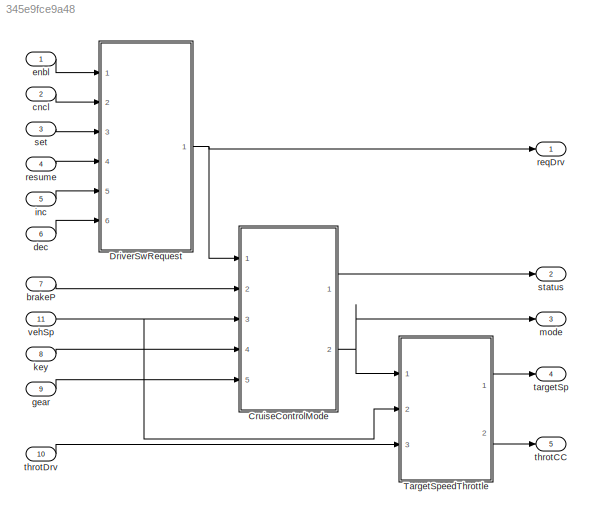
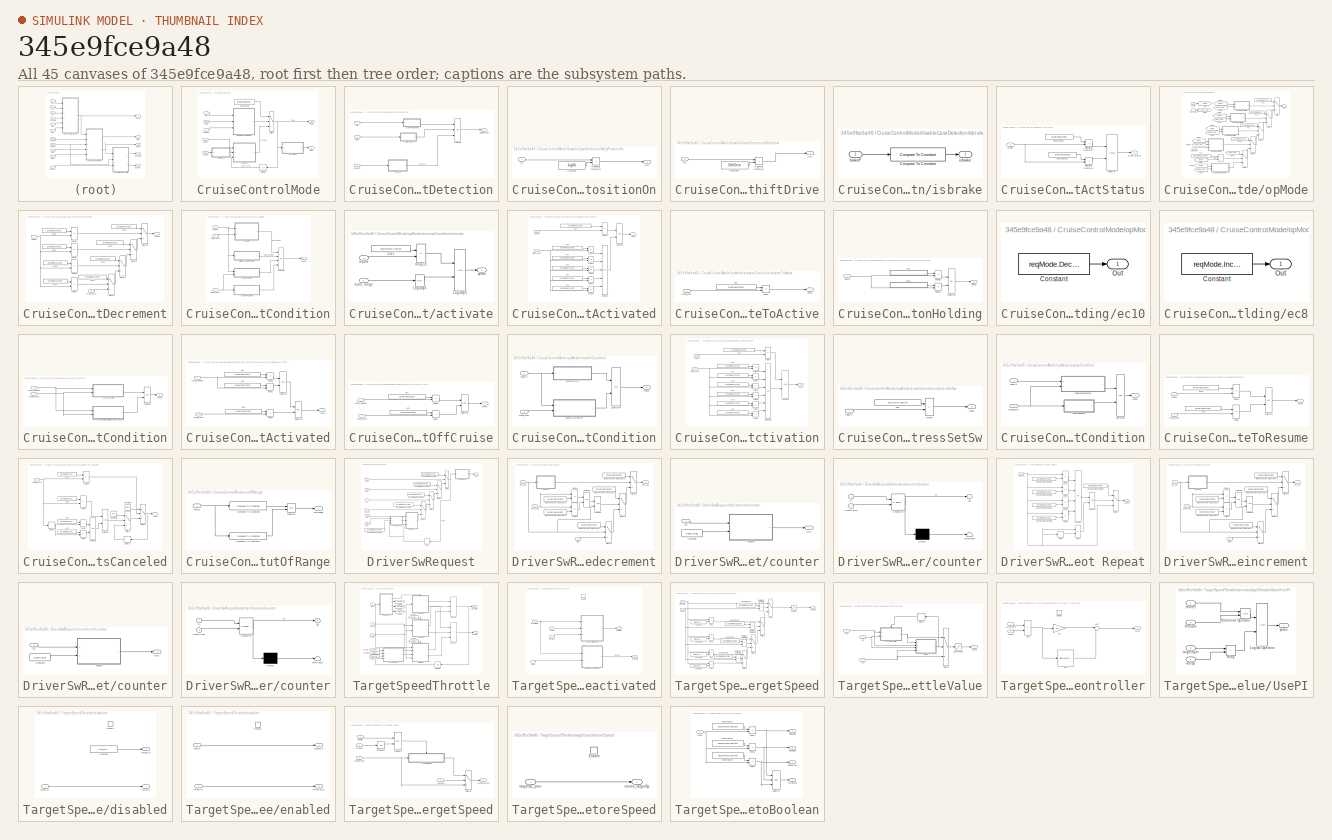
[diagram: thumbnail index - all 45 canvases of the model, root first then tree order]
MODEL slx_345e9fce9a48
KIND model
CONFIG AbsTol = auto
CONFIG EnableMultiTasking = on
CONFIG FixedStep = Ts
CONFIG MaxStep = auto
CONFIG MinStep = auto
CONFIG RelTol = 1e-3
CONFIG SampleTimeConstraint = Unconstrained
CONFIG SolverName = FixedStepDiscrete
CONFIG StartTime = 0.0
CONFIG StopTime = 2
BLOCK [SubSystem] CruiseControlMode
  Ports = [5, 2]
  RequestExecContextInheritance = off
  TreatAsAtomicUnit = on
BLOCK [Reference] CruiseControlMode/EnumConst2  REF=simulink/Sources/Enumerated
Constant
  Ports = [0, 1]
  SourceBlock = simulink/Sources/Enumerated\nConstant
  SourceProductBaseCode = SL
  SourceType = Enumerated Constant
BLOCK [Switch] CruiseControlMode/Switch
  Criteria = u2 ~= 0
  InputSameDT = off
  SaturateOnIntegerOverflow = off
BLOCK [UnitDelay] CruiseControlMode/UnitDelay
  AttributesFormatString = Init = %<InitialCondition>
  HasFrameUpgradeWarning = on
  InitialCondition = opMode.Disable
  SampleTime = -1
BLOCK [Inport] CruiseControlMode/brakeP
  Port = 2
BLOCK [SubSystem] CruiseControlMode/disableCaseDetection
  Ports = [3, 1]
  RequestExecContextInheritance = off
BLOCK [SubSystem] CruiseControlMode/disableCaseDetection/IsKeyPositionOn
  Ports = [1, 1]
  RequestExecContextInheritance = off
BLOCK [Constant] CruiseControlMode/disableCaseDetection/IsKeyPositionOn/Constant
  Value = KeyON
BLOCK [Inport] CruiseControlMode/disableCaseDetection/IsKeyPositionOn/In1
BLOCK [Outport] CruiseControlMode/disableCaseDetection/IsKeyPositionOn/Out1
  VectorParamsAs1DForOutWhenUnconnected = off
BLOCK [RelationalOperator] CruiseControlMode/disableCaseDetection/IsKeyPositionOn/Relational Operator2
  InputSameDT = off
  Operator = ~=
  OutDataTypeStr = boolean
  Ports = [2, 1]
BLOCK [SubSystem] CruiseControlMode/disableCaseDetection/IsShiftDrive
  Ports = [1, 1]
  RequestExecContextInheritance = off
BLOCK [Constant] CruiseControlMode/disableCaseDetection/IsShiftDrive/Constant1
  Value = ShiftDrive
BLOCK [Inport] CruiseControlMode/disableCaseDetection/IsShiftDrive/In1
BLOCK [Outport] CruiseControlMode/disableCaseDetection/IsShiftDrive/Out1
  VectorParamsAs1DForOutWhenUnconnected = off
BLOCK [RelationalOperator] CruiseControlMode/disableCaseDetection/IsShiftDrive/Relational Operator3
  InputSameDT = off
  Operator = ~=
  OutDataTypeStr = boolean
  Ports = [2, 1]
BLOCK [Logic] CruiseControlMode/disableCaseDetection/LogicOp1
  AllPortsSameDT = off
  Inputs = 3
  Operator = OR
  OutDataTypeStr = boolean
  Ports = [3, 1]
BLOCK [Inport] CruiseControlMode/disableCaseDetection/brakeP
  Port = 3
BLOCK [Outport] CruiseControlMode/disableCaseDetection/disable_flag
  VectorParamsAs1DForOutWhenUnconnected = off
BLOCK [Inport] CruiseControlMode/disableCaseDetection/gear
  Port = 2
BLOCK [SubSystem] CruiseControlMode/disableCaseDetection/isbrake
  Ports = [1, 1]
  RequestExecContextInheritance = off
BLOCK [Reference] CruiseControlMode/disableCaseDetection/isbrake/Compare To Constant  REF=simulink/Logic and Bit
Operations/Compare
To Constant
  Ports = [1, 1]
  SourceBlock = simulink/Logic and Bit\nOperations/Compare\nTo Constant
  SourceProductBaseCode = SL
  SourceType = Compare To Constant
BLOCK [Inport] CruiseControlMode/disableCaseDetection/isbrake/brakeP
BLOCK [Outport] CruiseControlMode/disableCaseDetection/isbrake/isbrake
  VectorParamsAs1DForOutWhenUnconnected = off
BLOCK [Inport] CruiseControlMode/disableCaseDetection/key
BLOCK [Inport] CruiseControlMode/gear
  Port = 5
BLOCK [SubSystem] CruiseControlMode/getActStatus
  Ports = [1, 1]
  RequestExecContextInheritance = off
BLOCK [Reference] CruiseControlMode/getActStatus/EnumConst1  REF=simulink/Sources/Enumerated
Constant
  Ports = [0, 1]
  SourceBlock = simulink/Sources/Enumerated\nConstant
  SourceProductBaseCode = SL
  SourceType = Enumerated Constant
BLOCK [Reference] CruiseControlMode/getActStatus/EnumConst2  REF=simulink/Sources/Enumerated
Constant
  Ports = [0, 1]
  SourceBlock = simulink/Sources/Enumerated\nConstant
  SourceProductBaseCode = SL
  SourceType = Enumerated Constant
BLOCK [Logic] CruiseControlMode/getActStatus/LogicOp1
  AllPortsSameDT = off
  OutDataTypeStr = boolean
  Ports = [2, 1]
BLOCK [RelationalOperator] CruiseControlMode/getActStatus/Relational Operator1
  InputSameDT = off
  Operator = ~=
  OutDataTypeStr = boolean
  Ports = [2, 1]
BLOCK [RelationalOperator] CruiseControlMode/getActStatus/Relational Operator2
  InputSameDT = off
  Operator = ~=
  OutDataTypeStr = boolean
  Ports = [2, 1]
BLOCK [Outport] CruiseControlMode/getActStatus/cc_act_status
  VectorParamsAs1DForOutWhenUnconnected = off
BLOCK [Inport] CruiseControlMode/getActStatus/mode
BLOCK [Inport] CruiseControlMode/key
  Port = 4
BLOCK [Outport] CruiseControlMode/mode
  Port = 2
  VectorParamsAs1DForOutWhenUnconnected = off
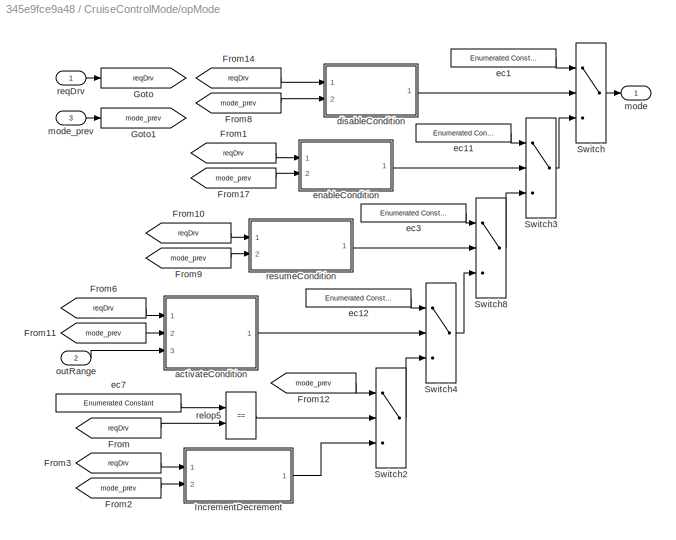
BLOCK [SubSystem] CruiseControlMode/opMode
  Ports = [3, 1]
  RequestExecContextInheritance = off
  TreatAsAtomicUnit = on
BLOCK [From] CruiseControlMode/opMode/From
  GotoTag = reqDrv
BLOCK [From] CruiseControlMode/opMode/From1
  GotoTag = reqDrv
BLOCK [From] CruiseControlMode/opMode/From10
  GotoTag = reqDrv
BLOCK [From] CruiseControlMode/opMode/From11
  GotoTag = mode_prev
BLOCK [From] CruiseControlMode/opMode/From12
  GotoTag = mode_prev
BLOCK [From] CruiseControlMode/opMode/From14
  GotoTag = reqDrv
BLOCK [From] CruiseControlMode/opMode/From17
  GotoTag = mode_prev
BLOCK [From] CruiseControlMode/opMode/From2
  GotoTag = mode_prev
BLOCK [From] CruiseControlMode/opMode/From3
  GotoTag = reqDrv
BLOCK [From] CruiseControlMode/opMode/From6
  GotoTag = reqDrv
BLOCK [From] CruiseControlMode/opMode/From8
  GotoTag = mode_prev
BLOCK [From] CruiseControlMode/opMode/From9
  GotoTag = mode_prev
BLOCK [Goto] CruiseControlMode/opMode/Goto
  GotoTag = reqDrv
BLOCK [Goto] CruiseControlMode/opMode/Goto1
  GotoTag = mode_prev
BLOCK [SubSystem] CruiseControlMode/opMode/IncrementDecrement
  Ports = [2, 1]
  RequestExecContextInheritance = off
BLOCK [Switch] CruiseControlMode/opMode/IncrementDecrement/Switch1
  Criteria = u2 ~= 0
  InputSameDT = off
  SaturateOnIntegerOverflow = off
BLOCK [Switch] CruiseControlMode/opMode/IncrementDecrement/Switch5
  Criteria = u2 ~= 0
  InputSameDT = off
  SaturateOnIntegerOverflow = off
BLOCK [Switch] CruiseControlMode/opMode/IncrementDecrement/Switch6
  Criteria = u2 ~= 0
  InputSameDT = off
  SaturateOnIntegerOverflow = off
BLOCK [Switch] CruiseControlMode/opMode/IncrementDecrement/Switch7
  Criteria = u2 ~= 0
  InputSameDT = off
  SaturateOnIntegerOverflow = off
BLOCK [Reference] CruiseControlMode/opMode/IncrementDecrement/ec18  REF=simulink/Sources/Enumerated
Constant
  Ports = [0, 1]
  SourceBlock = simulink/Sources/Enumerated\nConstant
  SourceProductBaseCode = SL
  SourceType = Enumerated Constant
BLOCK [Reference] CruiseControlMode/opMode/IncrementDecrement/ec19  REF=simulink/Sources/Enumerated
Constant
  Ports = [0, 1]
  SourceBlock = simulink/Sources/Enumerated\nConstant
  SourceProductBaseCode = SL
  SourceType = Enumerated Constant
BLOCK [Reference] CruiseControlMode/opMode/IncrementDecrement/ec2  REF=simulink/Sources/Enumerated
Constant
  Ports = [0, 1]
  SourceBlock = simulink/Sources/Enumerated\nConstant
  SourceProductBaseCode = SL
  SourceType = Enumerated Constant
BLOCK [Reference] CruiseControlMode/opMode/IncrementDecrement/ec20  REF=simulink/Sources/Enumerated
Constant
  Ports = [0, 1]
  SourceBlock = simulink/Sources/Enumerated\nConstant
  SourceProductBaseCode = SL
  SourceType = Enumerated Constant
BLOCK [Reference] CruiseControlMode/opMode/IncrementDecrement/ec21  REF=simulink/Sources/Enumerated
Constant
  Ports = [0, 1]
  SourceBlock = simulink/Sources/Enumerated\nConstant
  SourceProductBaseCode = SL
  SourceType = Enumerated Constant
BLOCK [Reference] CruiseControlMode/opMode/IncrementDecrement/ec22  REF=simulink/Sources/Enumerated
Constant
  Ports = [0, 1]
  SourceBlock = simulink/Sources/Enumerated\nConstant
  SourceProductBaseCode = SL
  SourceType = Enumerated Constant
BLOCK [Reference] CruiseControlMode/opMode/IncrementDecrement/ec23  REF=simulink/Sources/Enumerated
Constant
  Ports = [0, 1]
  SourceBlock = simulink/Sources/Enumerated\nConstant
  SourceProductBaseCode = SL
  SourceType = Enumerated Constant
BLOCK [Reference] CruiseControlMode/opMode/IncrementDecrement/ec25  REF=simulink/Sources/Enumerated
Constant
  Ports = [0, 1]
  SourceBlock = simulink/Sources/Enumerated\nConstant
  SourceProductBaseCode = SL
  SourceType = Enumerated Constant
BLOCK [Outport] CruiseControlMode/opMode/IncrementDecrement/mode
  VectorParamsAs1DForOutWhenUnconnected = off
BLOCK [Inport] CruiseControlMode/opMode/IncrementDecrement/mode_prev
  Port = 2
BLOCK [RelationalOperator] CruiseControlMode/opMode/IncrementDecrement/relop1
  InputSameDT = off
  Operator = ==
  OutDataTypeStr = boolean
  Ports = [2, 1]
BLOCK [RelationalOperator] CruiseControlMode/opMode/IncrementDecrement/relop14
  InputSameDT = off
  Operator = ==
  OutDataTypeStr = boolean
  Ports = [2, 1]
BLOCK [RelationalOperator] CruiseControlMode/opMode/IncrementDecrement/relop15
  InputSameDT = off
  Operator = ==
  OutDataTypeStr = boolean
  Ports = [2, 1]
BLOCK [RelationalOperator] CruiseControlMode/opMode/IncrementDecrement/relop17
  InputSameDT = off
  Operator = ==
  OutDataTypeStr = boolean
  Ports = [2, 1]
BLOCK [Inport] CruiseControlMode/opMode/IncrementDecrement/reqDrv
BLOCK [Switch] CruiseControlMode/opMode/Switch
  Criteria = u2 ~= 0
  InputSameDT = off
  SaturateOnIntegerOverflow = off
BLOCK [Switch] CruiseControlMode/opMode/Switch2
  Criteria = u2 ~= 0
  InputSameDT = off
  SaturateOnIntegerOverflow = off
BLOCK [Switch] CruiseControlMode/opMode/Switch3
  Criteria = u2 ~= 0
  InputSameDT = off
  SaturateOnIntegerOverflow = off
BLOCK [Switch] CruiseControlMode/opMode/Switch4
  Criteria = u2 ~= 0
  InputSameDT = off
  SaturateOnIntegerOverflow = off
BLOCK [Switch] CruiseControlMode/opMode/Switch8
  Criteria = u2 ~= 0
  InputSameDT = off
  SaturateOnIntegerOverflow = off
BLOCK [SubSystem] CruiseControlMode/opMode/activateCondition
  Ports = [3, 1]
  RequestExecContextInheritance = off
BLOCK [Logic] CruiseControlMode/opMode/activateCondition/LogicOp5
  AllPortsSameDT = off
  Inputs = 4
  Operator = OR
  OutDataTypeStr = boolean
  Ports = [4, 1]
BLOCK [SubSystem] CruiseControlMode/opMode/activateCondition/activate
  Ports = [2, 1]
  RequestExecContextInheritance = off
BLOCK [Logic] CruiseControlMode/opMode/activateCondition/activate/LogicOp3
  AllPortsSameDT = off
  OutDataTypeStr = boolean
  Ports = [2, 1]
BLOCK [Logic] CruiseControlMode/opMode/activateCondition/activate/LogicOp5
  AllPortsSameDT = off
  Operator = NOT
  OutDataTypeStr = boolean
  Ports = [1, 1]
BLOCK [Reference] CruiseControlMode/opMode/activateCondition/activate/ec15  REF=simulink/Sources/Enumerated
Constant
  Ports = [0, 1]
  SourceBlock = simulink/Sources/Enumerated\nConstant
  SourceProductBaseCode = SL
  SourceType = Enumerated Constant
BLOCK [Inport] CruiseControlMode/opMode/activateCondition/activate/outof_range
  Port = 2
BLOCK [RelationalOperator] CruiseControlMode/opMode/activateCondition/activate/relop11
  InputSameDT = off
  Operator = ==
  OutDataTypeStr = boolean
  Ports = [2, 1]
BLOCK [Inport] CruiseControlMode/opMode/activateCondition/activate/reqDrv
BLOCK [Outport] CruiseControlMode/opMode/activateCondition/activate/yesno
  VectorParamsAs1DForOutWhenUnconnected = off
BLOCK [SubSystem] CruiseControlMode/opMode/activateCondition/keepActivated
  Ports = [2, 1]
  RequestExecContextInheritance = off
BLOCK [Logic] CruiseControlMode/opMode/activateCondition/keepActivated/LogicOp1
  AllPortsSameDT = off
  Inputs = 5
  Operator = OR
  OutDataTypeStr = boolean
  Ports = [5, 1]
BLOCK [Logic] CruiseControlMode/opMode/activateCondition/keepActivated/LogicOp2
  AllPortsSameDT = off
  OutDataTypeStr = boolean
  Ports = [2, 1]
BLOCK [Reference] CruiseControlMode/opMode/activateCondition/keepActivated/ec1  REF=simulink/Sources/Enumerated
Constant
  Ports = [0, 1]
  SourceBlock = simulink/Sources/Enumerated\nConstant
  SourceProductBaseCode = SL
  SourceType = Enumerated Constant
BLOCK [Reference] CruiseControlMode/opMode/activateCondition/keepActivated/ec2  REF=simulink/Sources/Enumerated
Constant
  Ports = [0, 1]
  SourceBlock = simulink/Sources/Enumerated\nConstant
  SourceProductBaseCode = SL
  SourceType = Enumerated Constant
BLOCK [Reference] CruiseControlMode/opMode/activateCondition/keepActivated/ec3  REF=simulink/Sources/Enumerated
Constant
  Ports = [0, 1]
  SourceBlock = simulink/Sources/Enumerated\nConstant
  SourceProductBaseCode = SL
  SourceType = Enumerated Constant
BLOCK [Reference] CruiseControlMode/opMode/activateCondition/keepActivated/ec4  REF=simulink/Sources/Enumerated
Constant
  Ports = [0, 1]
  SourceBlock = simulink/Sources/Enumerated\nConstant
  SourceProductBaseCode = SL
  SourceType = Enumerated Constant
BLOCK [Reference] CruiseControlMode/opMode/activateCondition/keepActivated/ec5  REF=simulink/Sources/Enumerated
Constant
  Ports = [0, 1]
  SourceBlock = simulink/Sources/Enumerated\nConstant
  SourceProductBaseCode = SL
  SourceType = Enumerated Constant
BLOCK [Reference] CruiseControlMode/opMode/activateCondition/keepActivated/ec7  REF=simulink/Sources/Enumerated
Constant
  Ports = [0, 1]
  SourceBlock = simulink/Sources/Enumerated\nConstant
  SourceProductBaseCode = SL
  SourceType = Enumerated Constant
BLOCK [Inport] CruiseControlMode/opMode/activateCondition/keepActivated/mode_prev
  Port = 2
BLOCK [RelationalOperator] CruiseControlMode/opMode/activateCondition/keepActivated/relop1
  InputSameDT = off
  Operator = ==
  OutDataTypeStr = boolean
  Ports = [2, 1]
BLOCK [RelationalOperator] CruiseControlMode/opMode/activateCondition/keepActivated/relop2
  InputSameDT = off
  Operator = ==
  OutDataTypeStr = boolean
  Ports = [2, 1]
BLOCK [RelationalOperator] CruiseControlMode/opMode/activateCondition/keepActivated/relop3
  InputSameDT = off
  Operator = ==
  OutDataTypeStr = boolean
  Ports = [2, 1]
BLOCK [RelationalOperator] CruiseControlMode/opMode/activateCondition/keepActivated/relop4
  InputSameDT = off
  Operator = ==
  OutDataTypeStr = boolean
  Ports = [2, 1]
BLOCK [RelationalOperator] CruiseControlMode/opMode/activateCondition/keepActivated/relop5
  InputSameDT = off
  Operator = ==
  OutDataTypeStr = boolean
  Ports = [2, 1]
BLOCK [RelationalOperator] CruiseControlMode/opMode/activateCondition/keepActivated/relop6
  InputSameDT = off
  Operator = ==
  OutDataTypeStr = boolean
  Ports = [2, 1]
BLOCK [Inport] CruiseControlMode/opMode/activateCondition/keepActivated/reqDrv
BLOCK [Outport] CruiseControlMode/opMode/activateCondition/keepActivated/yesno
  VectorParamsAs1DForOutWhenUnconnected = off
BLOCK [Inport] CruiseControlMode/opMode/activateCondition/mode_prev
  Port = 2
BLOCK [Inport] CruiseControlMode/opMode/activateCondition/outof_range
  Port = 3
BLOCK [Inport] CruiseControlMode/opMode/activateCondition/reqDrv
BLOCK [SubSystem] CruiseControlMode/opMode/activateCondition/resumeToActive
  Ports = [1, 1]
  RequestExecContextInheritance = off
BLOCK [Reference] CruiseControlMode/opMode/activateCondition/resumeToActive/ec3  REF=simulink/Sources/Enumerated
Constant
  Ports = [0, 1]
  SourceBlock = simulink/Sources/Enumerated\nConstant
  SourceProductBaseCode = SL
  SourceType = Enumerated Constant
BLOCK [Inport] CruiseControlMode/opMode/activateCondition/resumeToActive/mode_prev
BLOCK [RelationalOperator] CruiseControlMode/opMode/activateCondition/resumeToActive/relop2
  InputSameDT = off
  Operator = ==
  OutDataTypeStr = boolean
  Ports = [2, 1]
BLOCK [Outport] CruiseControlMode/opMode/activateCondition/resumeToActive/yesno
  VectorParamsAs1DForOutWhenUnconnected = off
BLOCK [SubSystem] CruiseControlMode/opMode/activateCondition/waitingForButtonHolding
  Ports = [1, 1]
  RequestExecContextInheritance = off
BLOCK [Logic] CruiseControlMode/opMode/activateCondition/waitingForButtonHolding/LogicOp6
  AllPortsSameDT = off
  Operator = OR
  OutDataTypeStr = boolean
  Ports = [2, 1]
BLOCK [SubSystem] CruiseControlMode/opMode/activateCondition/waitingForButtonHolding/ec10
  DialogController = Simulink.DDGSource
  MaskHideContents = on
  PermitHierarchicalResolution = ExplicitOnly
  Ports = [0, 1]
  RequestExecContextInheritance = off
BLOCK [Constant] CruiseControlMode/opMode/activateCondition/waitingForButtonHolding/ec10/Constant
  DialogController = Simulink.DDGSource
  LockScale = on
  OutDataTypeStr = Enum: reqMode
  Value = reqMode.Dec_Middle
BLOCK [Outport] CruiseControlMode/opMode/activateCondition/waitingForButtonHolding/ec10/Out
  VectorParamsAs1DForOutWhenUnconnected = off
BLOCK [SubSystem] CruiseControlMode/opMode/activateCondition/waitingForButtonHolding/ec8
  DialogController = Simulink.DDGSource
  MaskHideContents = on
  PermitHierarchicalResolution = ExplicitOnly
  Ports = [0, 1]
  RequestExecContextInheritance = off
BLOCK [Constant] CruiseControlMode/opMode/activateCondition/waitingForButtonHolding/ec8/Constant
  DialogController = Simulink.DDGSource
  LockScale = on
  OutDataTypeStr = Enum: reqMode
  Value = reqMode.Inc_Middle
BLOCK [Outport] CruiseControlMode/opMode/activateCondition/waitingForButtonHolding/ec8/Out
  VectorParamsAs1DForOutWhenUnconnected = off
BLOCK [RelationalOperator] CruiseControlMode/opMode/activateCondition/waitingForButtonHolding/relop10
  InputSameDT = off
  Operator = ==
  OutDataTypeStr = boolean
  Ports = [2, 1]
BLOCK [RelationalOperator] CruiseControlMode/opMode/activateCondition/waitingForButtonHolding/relop11
  InputSameDT = off
  Operator = ==
  OutDataTypeStr = boolean
  Ports = [2, 1]
BLOCK [Inport] CruiseControlMode/opMode/activateCondition/waitingForButtonHolding/reqDrv
BLOCK [Outport] CruiseControlMode/opMode/activateCondition/waitingForButtonHolding/yesno
  VectorParamsAs1DForOutWhenUnconnected = off
BLOCK [Outport] CruiseControlMode/opMode/activateCondition/yesno
  VectorParamsAs1DForOutWhenUnconnected = off
BLOCK [SubSystem] CruiseControlMode/opMode/disableCondition
  Ports = [2, 1]
  RequestExecContextInheritance = off
BLOCK [Logic] CruiseControlMode/opMode/disableCondition/LogicOp7
  AllPortsSameDT = off
  Operator = OR
  OutDataTypeStr = boolean
  Ports = [2, 1]
BLOCK [SubSystem] CruiseControlMode/opMode/disableCondition/buttonsShouldBeCalledWhenActivated
  Ports = [2, 1]
  RequestExecContextInheritance = off
BLOCK [Logic] CruiseControlMode/opMode/disableCondition/buttonsShouldBeCalledWhenActivated/LogicOp1
  AllPortsSameDT = off
  OutDataTypeStr = boolean
  Ports = [2, 1]
BLOCK [Logic] CruiseControlMode/opMode/disableCondition/buttonsShouldBeCalledWhenActivated/LogicOp2
  AllPortsSameDT = off
  OutDataTypeStr = boolean
  Ports = [2, 1]
BLOCK [Inport] CruiseControlMode/opMode/disableCondition/buttonsShouldBeCalledWhenActivated/ccsw_request
BLOCK [Reference] CruiseControlMode/opMode/disableCondition/buttonsShouldBeCalledWhenActivated/ec1  REF=simulink/Sources/Enumerated
Constant
  Ports = [0, 1]
  SourceBlock = simulink/Sources/Enumerated\nConstant
  SourceProductBaseCode = SL
  SourceType = Enumerated Constant
BLOCK [Reference] CruiseControlMode/opMode/disableCondition/buttonsShouldBeCalledWhenActivated/ec2  REF=simulink/Sources/Enumerated
Constant
  Ports = [0, 1]
  SourceBlock = simulink/Sources/Enumerated\nConstant
  SourceProductBaseCode = SL
  SourceType = Enumerated Constant
BLOCK [Reference] CruiseControlMode/opMode/disableCondition/buttonsShouldBeCalledWhenActivated/ec9  REF=simulink/Sources/Enumerated
Constant
  Ports = [0, 1]
  SourceBlock = simulink/Sources/Enumerated\nConstant
  SourceProductBaseCode = SL
  SourceType = Enumerated Constant
BLOCK [Inport] CruiseControlMode/opMode/disableCondition/buttonsShouldBeCalledWhenActivated/mode_prev
  Port = 2
BLOCK [RelationalOperator] CruiseControlMode/opMode/disableCondition/buttonsShouldBeCalledWhenActivated/relop1
  InputSameDT = off
  Operator = ~=
  OutDataTypeStr = boolean
  Ports = [2, 1]
BLOCK [RelationalOperator] CruiseControlMode/opMode/disableCondition/buttonsShouldBeCalledWhenActivated/relop7
  InputSameDT = off
  Operator = ==
  OutDataTypeStr = boolean
  Ports = [2, 1]
BLOCK [RelationalOperator] CruiseControlMode/opMode/disableCondition/buttonsShouldBeCalledWhenActivated/relop8
  InputSameDT = off
  Operator = ~=
  OutDataTypeStr = boolean
  Ports = [2, 1]
BLOCK [Outport] CruiseControlMode/opMode/disableCondition/buttonsShouldBeCalledWhenActivated/yesno
  VectorParamsAs1DForOutWhenUnconnected = off
BLOCK [Inport] CruiseControlMode/opMode/disableCondition/ccsw_request
BLOCK [Inport] CruiseControlMode/opMode/disableCondition/mode_prev
  Port = 2
BLOCK [SubSystem] CruiseControlMode/opMode/disableCondition/turnOffCruise
  Ports = [2, 1]
  RequestExecContextInheritance = off
BLOCK [Logic] CruiseControlMode/opMode/disableCondition/turnOffCruise/LogicOp2
  AllPortsSameDT = off
  OutDataTypeStr = boolean
  Ports = [2, 1]
BLOCK [Inport] CruiseControlMode/opMode/disableCondition/turnOffCruise/ccsw_request
BLOCK [Reference] CruiseControlMode/opMode/disableCondition/turnOffCruise/ec1  REF=simulink/Sources/Enumerated
Constant
  Ports = [0, 1]
  SourceBlock = simulink/Sources/Enumerated\nConstant
  SourceProductBaseCode = SL
  SourceType = Enumerated Constant
BLOCK [Reference] CruiseControlMode/opMode/disableCondition/turnOffCruise/ec9  REF=simulink/Sources/Enumerated
Constant
  Ports = [0, 1]
  SourceBlock = simulink/Sources/Enumerated\nConstant
  SourceProductBaseCode = SL
  SourceType = Enumerated Constant
BLOCK [Inport] CruiseControlMode/opMode/disableCondition/turnOffCruise/mode_prev
  Port = 2
BLOCK [RelationalOperator] CruiseControlMode/opMode/disableCondition/turnOffCruise/relop7
  InputSameDT = off
  Operator = ~=
  OutDataTypeStr = boolean
  Ports = [2, 1]
BLOCK [RelationalOperator] CruiseControlMode/opMode/disableCondition/turnOffCruise/relop8
  InputSameDT = off
  Operator = ==
  OutDataTypeStr = boolean
  Ports = [2, 1]
BLOCK [Outport] CruiseControlMode/opMode/disableCondition/turnOffCruise/yesno
  VectorParamsAs1DForOutWhenUnconnected = off
BLOCK [Outport] CruiseControlMode/opMode/disableCondition/yesno
  VectorParamsAs1DForOutWhenUnconnected = off
BLOCK [Reference] CruiseControlMode/opMode/ec1  REF=simulink/Sources/Enumerated
Constant
  Ports = [0, 1]
  SourceBlock = simulink/Sources/Enumerated\nConstant
  SourceProductBaseCode = SL
  SourceType = Enumerated Constant
BLOCK [Reference] CruiseControlMode/opMode/ec11  REF=simulink/Sources/Enumerated
Constant
  Ports = [0, 1]
  SourceBlock = simulink/Sources/Enumerated\nConstant
  SourceProductBaseCode = SL
  SourceType = Enumerated Constant
BLOCK [Reference] CruiseControlMode/opMode/ec12  REF=simulink/Sources/Enumerated
Constant
  Ports = [0, 1]
  SourceBlock = simulink/Sources/Enumerated\nConstant
  SourceProductBaseCode = SL
  SourceType = Enumerated Constant
BLOCK [Reference] CruiseControlMode/opMode/ec3  REF=simulink/Sources/Enumerated
Constant
  Ports = [0, 1]
  SourceBlock = simulink/Sources/Enumerated\nConstant
  SourceProductBaseCode = SL
  SourceType = Enumerated Constant
BLOCK [Reference] CruiseControlMode/opMode/ec7  REF=simulink/Sources/Enumerated
Constant
  Ports = [0, 1]
  SourceBlock = simulink/Sources/Enumerated\nConstant
  SourceProductBaseCode = SL
  SourceType = Enumerated Constant
BLOCK [SubSystem] CruiseControlMode/opMode/enableCondition
  Ports = [2, 1]
  RequestExecContextInheritance = off
BLOCK [Logic] CruiseControlMode/opMode/enableCondition/LogicOp4
  AllPortsSameDT = off
  Operator = OR
  OutDataTypeStr = boolean
  Ports = [2, 1]
BLOCK [SubSystem] CruiseControlMode/opMode/enableCondition/cancelActivation
  Ports = [2, 1]
  RequestExecContextInheritance = off
BLOCK [Logic] CruiseControlMode/opMode/enableCondition/cancelActivation/LogicOp2
  AllPortsSameDT = off
  Inputs = 6
  Operator = OR
  OutDataTypeStr = boolean
  Ports = [6, 1]
BLOCK [Logic] CruiseControlMode/opMode/enableCondition/cancelActivation/LogicOp5
  AllPortsSameDT = off
  OutDataTypeStr = boolean
  Ports = [2, 1]
BLOCK [Reference] CruiseControlMode/opMode/enableCondition/cancelActivation/ec1  REF=simulink/Sources/Enumerated
Constant
  Ports = [0, 1]
  SourceBlock = simulink/Sources/Enumerated\nConstant
  SourceProductBaseCode = SL
  SourceType = Enumerated Constant
BLOCK [Reference] CruiseControlMode/opMode/enableCondition/cancelActivation/ec2  REF=simulink/Sources/Enumerated
Constant
  Ports = [0, 1]
  SourceBlock = simulink/Sources/Enumerated\nConstant
  SourceProductBaseCode = SL
  SourceType = Enumerated Constant
BLOCK [Reference] CruiseControlMode/opMode/enableCondition/cancelActivation/ec3  REF=simulink/Sources/Enumerated
Constant
  Ports = [0, 1]
  SourceBlock = simulink/Sources/Enumerated\nConstant
  SourceProductBaseCode = SL
  SourceType = Enumerated Constant
BLOCK [Reference] CruiseControlMode/opMode/enableCondition/cancelActivation/ec4  REF=simulink/Sources/Enumerated
Constant
  Ports = [0, 1]
  SourceBlock = simulink/Sources/Enumerated\nConstant
  SourceProductBaseCode = SL
  SourceType = Enumerated Constant
BLOCK [Reference] CruiseControlMode/opMode/enableCondition/cancelActivation/ec5  REF=simulink/Sources/Enumerated
Constant
  Ports = [0, 1]
  SourceBlock = simulink/Sources/Enumerated\nConstant
  SourceProductBaseCode = SL
  SourceType = Enumerated Constant
BLOCK [Reference] CruiseControlMode/opMode/enableCondition/cancelActivation/ec6  REF=simulink/Sources/Enumerated
Constant
  Ports = [0, 1]
  SourceBlock = simulink/Sources/Enumerated\nConstant
  SourceProductBaseCode = SL
  SourceType = Enumerated Constant
BLOCK [Reference] CruiseControlMode/opMode/enableCondition/cancelActivation/ec7  REF=simulink/Sources/Enumerated
Constant
  Ports = [0, 1]
  SourceBlock = simulink/Sources/Enumerated\nConstant
  SourceProductBaseCode = SL
  SourceType = Enumerated Constant
BLOCK [Inport] CruiseControlMode/opMode/enableCondition/cancelActivation/mode_prev
  Port = 2
BLOCK [RelationalOperator] CruiseControlMode/opMode/enableCondition/cancelActivation/relop1
  InputSameDT = off
  Operator = ==
  OutDataTypeStr = boolean
  Ports = [2, 1]
BLOCK [RelationalOperator] CruiseControlMode/opMode/enableCondition/cancelActivation/relop2
  InputSameDT = off
  Operator = ==
  OutDataTypeStr = boolean
  Ports = [2, 1]
BLOCK [RelationalOperator] CruiseControlMode/opMode/enableCondition/cancelActivation/relop3
  InputSameDT = off
  Operator = ==
  OutDataTypeStr = boolean
  Ports = [2, 1]
BLOCK [RelationalOperator] CruiseControlMode/opMode/enableCondition/cancelActivation/relop4
  InputSameDT = off
  Operator = ==
  OutDataTypeStr = boolean
  Ports = [2, 1]
BLOCK [RelationalOperator] CruiseControlMode/opMode/enableCondition/cancelActivation/relop5
  InputSameDT = off
  Operator = ==
  OutDataTypeStr = boolean
  Ports = [2, 1]
BLOCK [RelationalOperator] CruiseControlMode/opMode/enableCondition/cancelActivation/relop6
  InputSameDT = off
  Operator = ==
  OutDataTypeStr = boolean
  Ports = [2, 1]
BLOCK [RelationalOperator] CruiseControlMode/opMode/enableCondition/cancelActivation/relop7
  InputSameDT = off
  Operator = ==
  OutDataTypeStr = boolean
  Ports = [2, 1]
BLOCK [Inport] CruiseControlMode/opMode/enableCondition/cancelActivation/reqDrv
BLOCK [Outport] CruiseControlMode/opMode/enableCondition/cancelActivation/yesno
  VectorParamsAs1DForOutWhenUnconnected = off
BLOCK [Inport] CruiseControlMode/opMode/enableCondition/mode_prev
  Port = 2
BLOCK [SubSystem] CruiseControlMode/opMode/enableCondition/pressSetSw
  Ports = [1, 1]
  RequestExecContextInheritance = off
BLOCK [Reference] CruiseControlMode/opMode/enableCondition/pressSetSw/ec8  REF=simulink/Sources/Enumerated
Constant
  Ports = [0, 1]
  SourceBlock = simulink/Sources/Enumerated\nConstant
  SourceProductBaseCode = SL
  SourceType = Enumerated Constant
BLOCK [RelationalOperator] CruiseControlMode/opMode/enableCondition/pressSetSw/relop6
  InputSameDT = off
  Operator = ==
  OutDataTypeStr = boolean
  Ports = [2, 1]
BLOCK [Inport] CruiseControlMode/opMode/enableCondition/pressSetSw/reqDrv
BLOCK [Outport] CruiseControlMode/opMode/enableCondition/pressSetSw/yesno
  VectorParamsAs1DForOutWhenUnconnected = off
BLOCK [Inport] CruiseControlMode/opMode/enableCondition/reqDrv
BLOCK [Outport] CruiseControlMode/opMode/enableCondition/yesno
  VectorParamsAs1DForOutWhenUnconnected = off
BLOCK [Outport] CruiseControlMode/opMode/mode
  VectorParamsAs1DForOutWhenUnconnected = off
BLOCK [Inport] CruiseControlMode/opMode/mode_prev
  Port = 3
BLOCK [Inport] CruiseControlMode/opMode/outRange
  Port = 2
BLOCK [RelationalOperator] CruiseControlMode/opMode/relop5
  InputSameDT = off
  Operator = ==
  OutDataTypeStr = boolean
  Ports = [2, 1]
BLOCK [Inport] CruiseControlMode/opMode/reqDrv
BLOCK [SubSystem] CruiseControlMode/opMode/resumeCondition
  Ports = [2, 1]
  RequestExecContextInheritance = off
BLOCK [Logic] CruiseControlMode/opMode/resumeCondition/LogicOp6
  AllPortsSameDT = off
  OutDataTypeStr = boolean
  Ports = [2, 1]
BLOCK [SubSystem] CruiseControlMode/opMode/resumeCondition/enableToResume
  Ports = [2, 1]
  RequestExecContextInheritance = off
BLOCK [Logic] CruiseControlMode/opMode/resumeCondition/enableToResume/LogicOp1
  AllPortsSameDT = off
  OutDataTypeStr = boolean
  Ports = [2, 1]
BLOCK [Reference] CruiseControlMode/opMode/resumeCondition/enableToResume/ec15  REF=simulink/Sources/Enumerated
Constant
  Ports = [0, 1]
  SourceBlock = simulink/Sources/Enumerated\nConstant
  SourceProductBaseCode = SL
  SourceType = Enumerated Constant
BLOCK [Reference] CruiseControlMode/opMode/resumeCondition/enableToResume/ec3  REF=simulink/Sources/Enumerated
Constant
  Ports = [0, 1]
  SourceBlock = simulink/Sources/Enumerated\nConstant
  SourceProductBaseCode = SL
  SourceType = Enumerated Constant
BLOCK [Inport] CruiseControlMode/opMode/resumeCondition/enableToResume/mode_prev
  Port = 2
BLOCK [RelationalOperator] CruiseControlMode/opMode/resumeCondition/enableToResume/relop1
  InputSameDT = off
  Operator = ==
  OutDataTypeStr = boolean
  Ports = [2, 1]
BLOCK [RelationalOperator] CruiseControlMode/opMode/resumeCondition/enableToResume/relop11
  InputSameDT = off
  Operator = ==
  OutDataTypeStr = boolean
  Ports = [2, 1]
BLOCK [Inport] CruiseControlMode/opMode/resumeCondition/enableToResume/reqDrv
BLOCK [Outport] CruiseControlMode/opMode/resumeCondition/enableToResume/yesno
  VectorParamsAs1DForOutWhenUnconnected = off
BLOCK [SubSystem] CruiseControlMode/opMode/resumeCondition/hasCanceled
  Ports = [1, 1]
  RequestExecContextInheritance = off
BLOCK [Constant] CruiseControlMode/opMode/resumeCondition/hasCanceled/Constant1
  OutDataTypeStr = boolean
  Value = true
BLOCK [Constant] CruiseControlMode/opMode/resumeCondition/hasCanceled/Constant2
  OutDataTypeStr = boolean
  Value = false
BLOCK [Delay] CruiseControlMode/opMode/resumeCondition/hasCanceled/Delay1
  AttributesFormatString = Init=%<InitialCondition>
  DelayLength = 1
  InitialCondition = opMode.Disable
  InputPortMap = u0
  Ports = [1, 1]
BLOCK [Delay] CruiseControlMode/opMode/resumeCondition/hasCanceled/Delay2
  AttributesFormatString = Init=%<InitialCondition>
  DelayLength = 1
  InitialCondition = false
  InputPortMap = u0
  Ports = [1, 1]
BLOCK [Logic] CruiseControlMode/opMode/resumeCondition/hasCanceled/LogicOp1
  AllPortsSameDT = off
  OutDataTypeStr = boolean
  Ports = [2, 1]
BLOCK [Logic] CruiseControlMode/opMode/resumeCondition/hasCanceled/LogicOp2
  AllPortsSameDT = off
  OutDataTypeStr = boolean
  Ports = [2, 1]
BLOCK [Switch] CruiseControlMode/opMode/resumeCondition/hasCanceled/Switch1
  Criteria = u2 ~= 0
  InputSameDT = off
  SaturateOnIntegerOverflow = off
BLOCK [Switch] CruiseControlMode/opMode/resumeCondition/hasCanceled/Switch2
  Criteria = u2 ~= 0
  InputSameDT = off
  SaturateOnIntegerOverflow = off
BLOCK [Reference] CruiseControlMode/opMode/resumeCondition/hasCanceled/ec1  REF=simulink/Sources/Enumerated
Constant
  Ports = [0, 1]
  SourceBlock = simulink/Sources/Enumerated\nConstant
  SourceProductBaseCode = SL
  SourceType = Enumerated Constant
BLOCK [Reference] CruiseControlMode/opMode/resumeCondition/hasCanceled/ec2  REF=simulink/Sources/Enumerated
Constant
  Ports = [0, 1]
  SourceBlock = simulink/Sources/Enumerated\nConstant
  SourceProductBaseCode = SL
  SourceType = Enumerated Constant
BLOCK [Reference] CruiseControlMode/opMode/resumeCondition/hasCanceled/ec3  REF=simulink/Sources/Enumerated
Constant
  Ports = [0, 1]
  SourceBlock = simulink/Sources/Enumerated\nConstant
  SourceProductBaseCode = SL
  SourceType = Enumerated Constant
BLOCK [Reference] CruiseControlMode/opMode/resumeCondition/hasCanceled/ec4  REF=simulink/Sources/Enumerated
Constant
  Ports = [0, 1]
  SourceBlock = simulink/Sources/Enumerated\nConstant
  SourceProductBaseCode = SL
  SourceType = Enumerated Constant
BLOCK [Inport] CruiseControlMode/opMode/resumeCondition/hasCanceled/mode_prev
BLOCK [RelationalOperator] CruiseControlMode/opMode/resumeCondition/hasCanceled/relop1
  InputSameDT = off
  Operator = ~=
  OutDataTypeStr = boolean
  Ports = [2, 1]
BLOCK [RelationalOperator] CruiseControlMode/opMode/resumeCondition/hasCanceled/relop2
  InputSameDT = off
  Operator = ==
  OutDataTypeStr = boolean
  Ports = [2, 1]
BLOCK [RelationalOperator] CruiseControlMode/opMode/resumeCondition/hasCanceled/relop4
  InputSameDT = off
  Operator = ==
  OutDataTypeStr = boolean
  Ports = [2, 1]
BLOCK [RelationalOperator] CruiseControlMode/opMode/resumeCondition/hasCanceled/relop5
  InputSameDT = off
  Operator = ~=
  OutDataTypeStr = boolean
  Ports = [2, 1]
BLOCK [Outport] CruiseControlMode/opMode/resumeCondition/hasCanceled/yesno
  VectorParamsAs1DForOutWhenUnconnected = off
BLOCK [Inport] CruiseControlMode/opMode/resumeCondition/mode_prev
  Port = 2
BLOCK [Inport] CruiseControlMode/opMode/resumeCondition/reqDrv
BLOCK [Outport] CruiseControlMode/opMode/resumeCondition/yesno
  VectorParamsAs1DForOutWhenUnconnected = off
BLOCK [SubSystem] CruiseControlMode/outOfRange
  Ports = [1, 1]
  RequestExecContextInheritance = off
BLOCK [Reference] CruiseControlMode/outOfRange/Compare To Constant  REF=simulink/Logic and Bit
Operations/Compare
To Constant
  Ports = [1, 1]
  SourceBlock = simulink/Logic and Bit\nOperations/Compare\nTo Constant
  SourceProductBaseCode = SL
  SourceType = Compare To Constant
BLOCK [Reference] CruiseControlMode/outOfRange/Compare To Constant1  REF=simulink/Logic and Bit
Operations/Compare
To Constant
  Ports = [1, 1]
  SourceBlock = simulink/Logic and Bit\nOperations/Compare\nTo Constant
  SourceProductBaseCode = SL
  SourceType = Compare To Constant
BLOCK [Logic] CruiseControlMode/outOfRange/LogicOp
  AllPortsSameDT = off
  Operator = OR
  OutDataTypeStr = boolean
  Ports = [2, 1]
BLOCK [Outport] CruiseControlMode/outOfRange/outRange
  VectorParamsAs1DForOutWhenUnconnected = off
BLOCK [Inport] CruiseControlMode/outOfRange/vehSp
BLOCK [Inport] CruiseControlMode/reqDrv
BLOCK [Outport] CruiseControlMode/status
  VectorParamsAs1DForOutWhenUnconnected = off
BLOCK [Inport] CruiseControlMode/vehSp
  Port = 3
BLOCK [SubSystem] DriverSwRequest
  Ports = [6, 1]
  RequestExecContextInheritance = off
  TreatAsAtomicUnit = on
BLOCK [Delay] DriverSwRequest/Delay
  AttributesFormatString = IC: %<InitialCondition>
  DelayLength = 1
  InitialCondition = reqMode.NoRequest
  InputPortMap = u0
  Ports = [1, 1]
BLOCK [Reference] DriverSwRequest/Enumerated Constant  REF=simulink/Sources/Enumerated
Constant
  Ports = [0, 1]
  SourceBlock = simulink/Sources/Enumerated\nConstant
  SourceProductBaseCode = SL
  SourceType = Enumerated Constant
BLOCK [Reference] DriverSwRequest/Enumerated Constant1  REF=simulink/Sources/Enumerated
Constant
  Ports = [0, 1]
  SourceBlock = simulink/Sources/Enumerated\nConstant
  SourceProductBaseCode = SL
  SourceType = Enumerated Constant
BLOCK [Reference] DriverSwRequest/Enumerated Constant2  REF=simulink/Sources/Enumerated
Constant
  Ports = [0, 1]
  SourceBlock = simulink/Sources/Enumerated\nConstant
  SourceProductBaseCode = SL
  SourceType = Enumerated Constant
BLOCK [Reference] DriverSwRequest/Enumerated Constant3  REF=simulink/Sources/Enumerated
Constant
  Ports = [0, 1]
  SourceBlock = simulink/Sources/Enumerated\nConstant
  SourceProductBaseCode = SL
  SourceType = Enumerated Constant
BLOCK [Reference] DriverSwRequest/Enumerated Constant4  REF=simulink/Sources/Enumerated
Constant
  NameLocation = top
  Ports = [0, 1]
  SourceBlock = simulink/Sources/Enumerated\nConstant
  SourceProductBaseCode = SL
  SourceType = Enumerated Constant
BLOCK [Switch] DriverSwRequest/Switch
  Criteria = u2 ~= 0
  InputSameDT = off
  SaturateOnIntegerOverflow = off
BLOCK [Switch] DriverSwRequest/Switch1
  Criteria = u2 ~= 0
  InputSameDT = off
  SaturateOnIntegerOverflow = off
BLOCK [Switch] DriverSwRequest/Switch2
  Criteria = u2 ~= 0
  InputSameDT = off
  SaturateOnIntegerOverflow = off
BLOCK [Switch] DriverSwRequest/Switch3
  Criteria = u2 ~= 0
  InputSameDT = off
  SaturateOnIntegerOverflow = off
BLOCK [Inport] DriverSwRequest/cncl
  Port = 2
BLOCK [Inport] DriverSwRequest/dec
  OutDataTypeStr = boolean
  Port = 6
BLOCK [SubSystem] DriverSwRequest/decrement
  Ports = [3, 1]
  RequestExecContextInheritance = off
BLOCK [Reference] DriverSwRequest/decrement/Enumerated Constant1  REF=simulink/Sources/Enumerated
Constant
  Ports = [0, 1]
  SourceBlock = simulink/Sources/Enumerated\nConstant
  SourceProductBaseCode = SL
  SourceType = Enumerated Constant
BLOCK [Reference] DriverSwRequest/decrement/Enumerated Constant2  REF=simulink/Sources/Enumerated
Constant
  Ports = [0, 1]
  SourceBlock = simulink/Sources/Enumerated\nConstant
  SourceProductBaseCode = SL
  SourceType = Enumerated Constant
BLOCK [Reference] DriverSwRequest/decrement/Enumerated Constant3  REF=simulink/Sources/Enumerated
Constant
  Ports = [0, 1]
  SourceBlock = simulink/Sources/Enumerated\nConstant
  SourceProductBaseCode = SL
  SourceType = Enumerated Constant
BLOCK [Reference] DriverSwRequest/decrement/Enumerated Constant5  REF=simulink/Sources/Enumerated
Constant
  Ports = [0, 1]
  SourceBlock = simulink/Sources/Enumerated\nConstant
  SourceProductBaseCode = SL
  SourceType = Enumerated Constant
BLOCK [Reference] DriverSwRequest/decrement/Enumerated Constant7  REF=simulink/Sources/Enumerated
Constant
  Ports = [0, 1]
  SourceBlock = simulink/Sources/Enumerated\nConstant
  SourceProductBaseCode = SL
  SourceType = Enumerated Constant
BLOCK [Logic] DriverSwRequest/decrement/LogicOp1
  AllPortsSameDT = off
  OutDataTypeStr = boolean
  Ports = [2, 1]
BLOCK [Logic] DriverSwRequest/decrement/LogicOp3
  AllPortsSameDT = off
  Operator = OR
  OutDataTypeStr = boolean
  Ports = [2, 1]
BLOCK [Switch] DriverSwRequest/decrement/Switch1
  Criteria = u2 ~= 0
  InputSameDT = off
  SaturateOnIntegerOverflow = off
BLOCK [Switch] DriverSwRequest/decrement/Switch4
  Criteria = u2 ~= 0
  InputSameDT = off
  SaturateOnIntegerOverflow = off
BLOCK [Switch] DriverSwRequest/decrement/Switch6
  Criteria = u2 ~= 0
  InputSameDT = off
  SaturateOnIntegerOverflow = off
BLOCK [SubSystem] DriverSwRequest/decrement/counter
  DisableCoverage = on
  Ports = [1, 1]
  RequestExecContextInheritance = off
BLOCK [Constant] DriverSwRequest/decrement/counter/Constant
  OutDataTypeStr = OutDataTypeStr
  Value = CountValue
BLOCK [Inport] DriverSwRequest/decrement/counter/In1
BLOCK [Outport] DriverSwRequest/decrement/counter/Out1
  VectorParamsAs1DForOutWhenUnconnected = off
BLOCK [SubSystem] DriverSwRequest/decrement/counter/counter
  ErrorFcn = Stateflow.Translate.translate
  PermitHierarchicalResolution = ExplicitOnly
  Ports = [2, 1]
  RequestExecContextInheritance = off
  SFBlockType = MATLAB Function
  TreatAsAtomicUnit = on
BLOCK [Demux] DriverSwRequest/decrement/counter/counter/ Demux 
  Outputs = 1
  Ports = [1, 1]
BLOCK [S-Function] DriverSwRequest/decrement/counter/counter/ SFunction 
  EnableBusSupport = off
  FunctionName = sf_sfun
  PortCounts = [2 2]
  Ports = [2, 2]
  SFcnIsStateOwnerBlock = off
  SFunctionDeploymentMode = off
  Tag = Stateflow S-Function 1
BLOCK [Terminator] DriverSwRequest/decrement/counter/counter/ Terminator 
BLOCK [Inport] DriverSwRequest/decrement/counter/counter/CountValue
  Port = 2
BLOCK [Inport] DriverSwRequest/decrement/counter/counter/in
BLOCK [Outport] DriverSwRequest/decrement/counter/counter/out
  VectorParamsAs1DForOutWhenUnconnected = off
BLOCK [Outport] DriverSwRequest/decrement/dec_out
  VectorParamsAs1DForOutWhenUnconnected = off
BLOCK [Inport] DriverSwRequest/decrement/dec_sw
BLOCK [Inport] DriverSwRequest/decrement/else
  Port = 2
BLOCK [Inport] DriverSwRequest/decrement/prev_req
  Port = 3
BLOCK [RelationalOperator] DriverSwRequest/decrement/relop1
  InputSameDT = off
  Operator = ==
  OutDataTypeStr = boolean
  Ports = [2, 1]
BLOCK [RelationalOperator] DriverSwRequest/decrement/relop14
  InputSameDT = off
  Operator = ==
  OutDataTypeStr = boolean
  Ports = [2, 1]
BLOCK [SubSystem] DriverSwRequest/doNot Repeat
  Ports = [1, 1]
  RequestExecContextInheritance = off
BLOCK [Delay] DriverSwRequest/doNot Repeat/Delay
  AttributesFormatString = Init = %<InitialCondition>
  DelayLength = 1
  InitialCondition = reqMode.NoRequest
  InputPortMap = u0
  Ports = [1, 1]
BLOCK [Reference] DriverSwRequest/doNot Repeat/Enumerated Constant1  REF=simulink/Sources/Enumerated
Constant
  Ports = [0, 1]
  SourceBlock = simulink/Sources/Enumerated\nConstant
  SourceProductBaseCode = SL
  SourceType = Enumerated Constant
BLOCK [Reference] DriverSwRequest/doNot Repeat/Enumerated Constant2  REF=simulink/Sources/Enumerated
Constant
  Ports = [0, 1]
  SourceBlock = simulink/Sources/Enumerated\nConstant
  SourceProductBaseCode = SL
  SourceType = Enumerated Constant
BLOCK [Reference] DriverSwRequest/doNot Repeat/Enumerated Constant3  REF=simulink/Sources/Enumerated
Constant
  Ports = [0, 1]
  SourceBlock = simulink/Sources/Enumerated\nConstant
  SourceProductBaseCode = SL
  SourceType = Enumerated Constant
BLOCK [Reference] DriverSwRequest/doNot Repeat/Enumerated Constant4  REF=simulink/Sources/Enumerated
Constant
  NameLocation = top
  Ports = [0, 1]
  SourceBlock = simulink/Sources/Enumerated\nConstant
  SourceProductBaseCode = SL
  SourceType = Enumerated Constant
BLOCK [Reference] DriverSwRequest/doNot Repeat/Enumerated Constant5  REF=simulink/Sources/Enumerated
Constant
  Ports = [0, 1]
  SourceBlock = simulink/Sources/Enumerated\nConstant
  SourceProductBaseCode = SL
  SourceType = Enumerated Constant
BLOCK [Logic] DriverSwRequest/doNot Repeat/LogicOp1
  AllPortsSameDT = off
  OutDataTypeStr = boolean
  Ports = [2, 1]
BLOCK [Logic] DriverSwRequest/doNot Repeat/LogicOp3
  AllPortsSameDT = off
  Inputs = 4
  Operator = OR
  OutDataTypeStr = boolean
  Ports = [4, 1]
BLOCK [Switch] DriverSwRequest/doNot Repeat/Switch4
  Criteria = u2 ~= 0
  InputSameDT = off
  SaturateOnIntegerOverflow = off
BLOCK [RelationalOperator] DriverSwRequest/doNot Repeat/relop1
  InputSameDT = off
  Operator = ==
  OutDataTypeStr = boolean
  Ports = [2, 1]
BLOCK [RelationalOperator] DriverSwRequest/doNot Repeat/relop14
  InputSameDT = off
  Operator = ==
  OutDataTypeStr = boolean
  Ports = [2, 1]
BLOCK [RelationalOperator] DriverSwRequest/doNot Repeat/relop2
  InputSameDT = off
  Operator = ==
  OutDataTypeStr = boolean
  Ports = [2, 1]
BLOCK [RelationalOperator] DriverSwRequest/doNot Repeat/relop3
  InputSameDT = off
  Operator = ==
  OutDataTypeStr = boolean
  Ports = [2, 1]
BLOCK [RelationalOperator] DriverSwRequest/doNot Repeat/relop4
  InputSameDT = off
  Operator = ==
  OutDataTypeStr = boolean
  Ports = [2, 1]
BLOCK [Inport] DriverSwRequest/doNot Repeat/reqDrInv
BLOCK [Outport] DriverSwRequest/doNot Repeat/reqDrv
  VectorParamsAs1DForOutWhenUnconnected = off
BLOCK [Inport] DriverSwRequest/enbl
BLOCK [Inport] DriverSwRequest/inc
  OutDataTypeStr = boolean
  Port = 5
BLOCK [SubSystem] DriverSwRequest/increment
  Ports = [3, 1]
  RequestExecContextInheritance = off
BLOCK [Reference] DriverSwRequest/increment/Enumerated Constant1  REF=simulink/Sources/Enumerated
Constant
  Ports = [0, 1]
  SourceBlock = simulink/Sources/Enumerated\nConstant
  SourceProductBaseCode = SL
  SourceType = Enumerated Constant
BLOCK [Reference] DriverSwRequest/increment/Enumerated Constant2  REF=simulink/Sources/Enumerated
Constant
  Ports = [0, 1]
  SourceBlock = simulink/Sources/Enumerated\nConstant
  SourceProductBaseCode = SL
  SourceType = Enumerated Constant
BLOCK [Reference] DriverSwRequest/increment/Enumerated Constant3  REF=simulink/Sources/Enumerated
Constant
  Ports = [0, 1]
  SourceBlock = simulink/Sources/Enumerated\nConstant
  SourceProductBaseCode = SL
  SourceType = Enumerated Constant
BLOCK [Reference] DriverSwRequest/increment/Enumerated Constant5  REF=simulink/Sources/Enumerated
Constant
  Ports = [0, 1]
  SourceBlock = simulink/Sources/Enumerated\nConstant
  SourceProductBaseCode = SL
  SourceType = Enumerated Constant
BLOCK [Reference] DriverSwRequest/increment/Enumerated Constant7  REF=simulink/Sources/Enumerated
Constant
  Ports = [0, 1]
  SourceBlock = simulink/Sources/Enumerated\nConstant
  SourceProductBaseCode = SL
  SourceType = Enumerated Constant
BLOCK [Logic] DriverSwRequest/increment/LogicOp1
  AllPortsSameDT = off
  OutDataTypeStr = boolean
  Ports = [2, 1]
BLOCK [Logic] DriverSwRequest/increment/LogicOp3
  AllPortsSameDT = off
  Operator = OR
  OutDataTypeStr = boolean
  Ports = [2, 1]
BLOCK [Switch] DriverSwRequest/increment/Switch1
  Criteria = u2 ~= 0
  InputSameDT = off
  SaturateOnIntegerOverflow = off
BLOCK [Switch] DriverSwRequest/increment/Switch4
  Criteria = u2 ~= 0
  InputSameDT = off
  SaturateOnIntegerOverflow = off
BLOCK [Switch] DriverSwRequest/increment/Switch6
  Criteria = u2 ~= 0
  InputSameDT = off
  SaturateOnIntegerOverflow = off
BLOCK [SubSystem] DriverSwRequest/increment/counter
  DisableCoverage = on
  Ports = [1, 1]
  RequestExecContextInheritance = off
BLOCK [Constant] DriverSwRequest/increment/counter/Constant
  OutDataTypeStr = OutDataTypeStr
  Value = CountValue
BLOCK [Inport] DriverSwRequest/increment/counter/In1
BLOCK [Outport] DriverSwRequest/increment/counter/Out1
  VectorParamsAs1DForOutWhenUnconnected = off
BLOCK [SubSystem] DriverSwRequest/increment/counter/counter
  ErrorFcn = Stateflow.Translate.translate
  PermitHierarchicalResolution = ExplicitOnly
  Ports = [2, 1]
  RequestExecContextInheritance = off
  SFBlockType = MATLAB Function
  TreatAsAtomicUnit = on
BLOCK [Demux] DriverSwRequest/increment/counter/counter/ Demux 
  Outputs = 1
  Ports = [1, 1]
BLOCK [S-Function] DriverSwRequest/increment/counter/counter/ SFunction 
  EnableBusSupport = off
  FunctionName = sf_sfun
  PortCounts = [2 2]
  Ports = [2, 2]
  SFcnIsStateOwnerBlock = off
  SFunctionDeploymentMode = off
  Tag = Stateflow S-Function 2
BLOCK [Terminator] DriverSwRequest/increment/counter/counter/ Terminator 
BLOCK [Inport] DriverSwRequest/increment/counter/counter/CountValue
  Port = 2
BLOCK [Inport] DriverSwRequest/increment/counter/counter/in
BLOCK [Outport] DriverSwRequest/increment/counter/counter/out
  VectorParamsAs1DForOutWhenUnconnected = off
BLOCK [Inport] DriverSwRequest/increment/else
  Port = 2
BLOCK [Outport] DriverSwRequest/increment/inc_out
  VectorParamsAs1DForOutWhenUnconnected = off
BLOCK [Inport] DriverSwRequest/increment/inc_sw
BLOCK [Inport] DriverSwRequest/increment/prev_req
  Port = 3
BLOCK [RelationalOperator] DriverSwRequest/increment/relop1
  InputSameDT = off
  Operator = ==
  OutDataTypeStr = boolean
  Ports = [2, 1]
BLOCK [RelationalOperator] DriverSwRequest/increment/relop14
  InputSameDT = off
  Operator = ==
  OutDataTypeStr = boolean
  Ports = [2, 1]
BLOCK [Outport] DriverSwRequest/reqDrv
  VectorParamsAs1DForOutWhenUnconnected = off
BLOCK [Inport] DriverSwRequest/resume
  Port = 4
BLOCK [Inport] DriverSwRequest/set
  Port = 3
BLOCK [SubSystem] TargetSpeedThrottle
  Ports = [3, 2]
  RequestExecContextInheritance = off
  TreatAsAtomicUnit = on
BLOCK [From] TargetSpeedThrottle/From1
  GotoTag = Enable
BLOCK [From] TargetSpeedThrottle/From2
  GotoTag = Activate
BLOCK [From] TargetSpeedThrottle/From7
  GotoTag = Enable
BLOCK [From] TargetSpeedThrottle/From8
  GotoTag = Activate
BLOCK [From] TargetSpeedThrottle/From9
  GotoTag = Resume
BLOCK [Goto] TargetSpeedThrottle/Goto1
  GotoTag = Enable
BLOCK [Goto] TargetSpeedThrottle/Goto2
  GotoTag = Activate
BLOCK [Goto] TargetSpeedThrottle/Goto3
  GotoTag = Resume
BLOCK [Merge] TargetSpeedThrottle/Merge
  Inputs = 3
  Ports = [3, 1]
BLOCK [Merge] TargetSpeedThrottle/Merge1
  Inputs = 3
  Ports = [3, 1]
BLOCK [UnitDelay] TargetSpeedThrottle/UnitDelay
  AttributesFormatString = Init = %<InitialCondition>
  HasFrameUpgradeWarning = on
  SampleTime = -1
BLOCK [SubSystem] TargetSpeedThrottle/activated
  Ports = [4, 2, 1]
  RequestExecContextInheritance = off
  TreatAsAtomicUnit = on
BLOCK [EnablePort] TargetSpeedThrottle/activated/Enable
  Ports = []
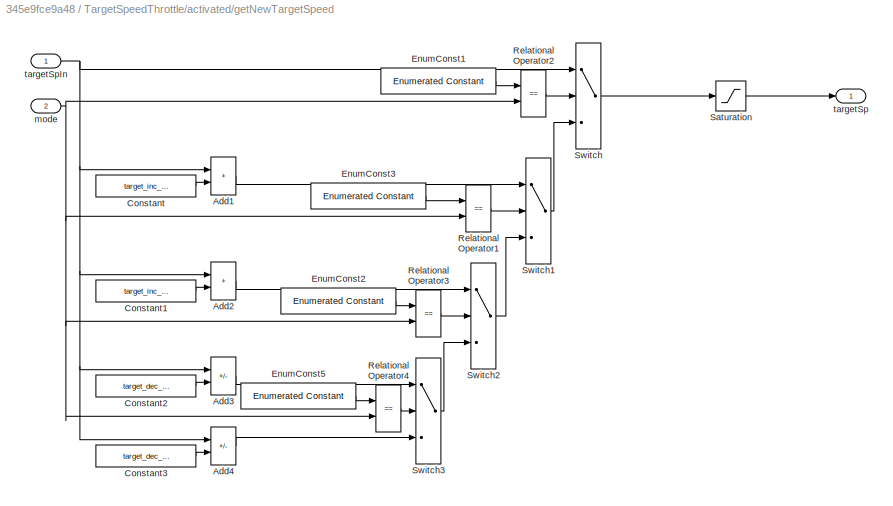
BLOCK [SubSystem] TargetSpeedThrottle/activated/getNewTargetSpeed
  Ports = [2, 1]
  RequestExecContextInheritance = off
BLOCK [Sum] TargetSpeedThrottle/activated/getNewTargetSpeed/Add1
  IconShape = rectangular
  Ports = [2, 1]
BLOCK [Sum] TargetSpeedThrottle/activated/getNewTargetSpeed/Add2
  IconShape = rectangular
  Ports = [2, 1]
BLOCK [Sum] TargetSpeedThrottle/activated/getNewTargetSpeed/Add3
  IconShape = rectangular
  Inputs = +-
  Ports = [2, 1]
BLOCK [Sum] TargetSpeedThrottle/activated/getNewTargetSpeed/Add4
  IconShape = rectangular
  Inputs = +-
  Ports = [2, 1]
BLOCK [Constant] TargetSpeedThrottle/activated/getNewTargetSpeed/Constant
  OutDataTypeStr = Inherit: Inherit via back propagation
  Value = target_inc_short
BLOCK [Constant] TargetSpeedThrottle/activated/getNewTargetSpeed/Constant1
  OutDataTypeStr = Inherit: Inherit via back propagation
  Value = target_inc_hold
BLOCK [Constant] TargetSpeedThrottle/activated/getNewTargetSpeed/Constant2
  OutDataTypeStr = Inherit: Inherit via back propagation
  Value = target_dec_short
BLOCK [Constant] TargetSpeedThrottle/activated/getNewTargetSpeed/Constant3
  OutDataTypeStr = Inherit: Inherit via back propagation
  Value = target_dec_hold
BLOCK [Reference] TargetSpeedThrottle/activated/getNewTargetSpeed/EnumConst1  REF=simulink/Sources/Enumerated
Constant
  Ports = [0, 1]
  SourceBlock = simulink/Sources/Enumerated\nConstant
  SourceProductBaseCode = SL
  SourceType = Enumerated Constant
BLOCK [Reference] TargetSpeedThrottle/activated/getNewTargetSpeed/EnumConst2  REF=simulink/Sources/Enumerated
Constant
  Ports = [0, 1]
  SourceBlock = simulink/Sources/Enumerated\nConstant
  SourceProductBaseCode = SL
  SourceType = Enumerated Constant
BLOCK [Reference] TargetSpeedThrottle/activated/getNewTargetSpeed/EnumConst3  REF=simulink/Sources/Enumerated
Constant
  Ports = [0, 1]
  SourceBlock = simulink/Sources/Enumerated\nConstant
  SourceProductBaseCode = SL
  SourceType = Enumerated Constant
BLOCK [Reference] TargetSpeedThrottle/activated/getNewTargetSpeed/EnumConst5  REF=simulink/Sources/Enumerated
Constant
  Ports = [0, 1]
  SourceBlock = simulink/Sources/Enumerated\nConstant
  SourceProductBaseCode = SL
  SourceType = Enumerated Constant
BLOCK [RelationalOperator] TargetSpeedThrottle/activated/getNewTargetSpeed/Relational Operator1
  InputSameDT = off
  Operator = ==
  OutDataTypeStr = boolean
  Ports = [2, 1]
BLOCK [RelationalOperator] TargetSpeedThrottle/activated/getNewTargetSpeed/Relational Operator2
  InputSameDT = off
  Operator = ==
  OutDataTypeStr = boolean
  Ports = [2, 1]
BLOCK [RelationalOperator] TargetSpeedThrottle/activated/getNewTargetSpeed/Relational Operator3
  InputSameDT = off
  Operator = ==
  OutDataTypeStr = boolean
  Ports = [2, 1]
BLOCK [RelationalOperator] TargetSpeedThrottle/activated/getNewTargetSpeed/Relational Operator4
  InputSameDT = off
  Operator = ==
  OutDataTypeStr = boolean
  Ports = [2, 1]
BLOCK [Saturate] TargetSpeedThrottle/activated/getNewTargetSpeed/Saturation
  AttributesFormatString = H:%<UpperLimit>\nL:%<LowerLimit>
  LowerLimit = tsp_min
  UpperLimit = tsp_max
BLOCK [Switch] TargetSpeedThrottle/activated/getNewTargetSpeed/Switch
  Criteria = u2 ~= 0
  InputSameDT = off
  SaturateOnIntegerOverflow = off
BLOCK [Switch] TargetSpeedThrottle/activated/getNewTargetSpeed/Switch1
  Criteria = u2 ~= 0
  InputSameDT = off
  SaturateOnIntegerOverflow = off
BLOCK [Switch] TargetSpeedThrottle/activated/getNewTargetSpeed/Switch2
  Criteria = u2 ~= 0
  InputSameDT = off
  SaturateOnIntegerOverflow = off
BLOCK [Switch] TargetSpeedThrottle/activated/getNewTargetSpeed/Switch3
  Criteria = u2 ~= 0
  InputSameDT = off
  SaturateOnIntegerOverflow = off
BLOCK [Inport] TargetSpeedThrottle/activated/getNewTargetSpeed/mode
  Port = 2
BLOCK [Outport] TargetSpeedThrottle/activated/getNewTargetSpeed/targetSp
  VectorParamsAs1DForOutWhenUnconnected = off
BLOCK [Inport] TargetSpeedThrottle/activated/getNewTargetSpeed/targetSpIn
BLOCK [SubSystem] TargetSpeedThrottle/activated/getThrottleValue
  Ports = [3, 1]
  RequestExecContextInheritance = off
BLOCK [Delay] TargetSpeedThrottle/activated/getThrottleValue/Delay1
  AttributesFormatString = Init = %<InitialCondition>
  DelayLength = 1
  InitialCondition = 0
  InputPortMap = u0
  Ports = [1, 1]
BLOCK [Inport] TargetSpeedThrottle/activated/getThrottleValue/In1
BLOCK [Inport] TargetSpeedThrottle/activated/getThrottleValue/In2
  Port = 2
BLOCK [Inport] TargetSpeedThrottle/activated/getThrottleValue/In3
  Port = 3
BLOCK [Outport] TargetSpeedThrottle/activated/getThrottleValue/Out1
  VectorParamsAs1DForOutWhenUnconnected = off
BLOCK [SubSystem] TargetSpeedThrottle/activated/getThrottleValue/PI controller
  Ports = [2, 1, 1]
  RequestExecContextInheritance = off
  TreatAsAtomicUnit = on
BLOCK [Sum] TargetSpeedThrottle/activated/getThrottleValue/PI controller/Add
  IconShape = rectangular
  Inputs = +-
  Ports = [2, 1]
BLOCK [DiscreteIntegrator] TargetSpeedThrottle/activated/getThrottleValue/PI controller/DTI 
  ICPrevOutput = DiscIntNeverNeededParam
  ICPrevScaledInput = DiscIntNeverNeededParam
  InitialConditionSetting = Auto
  Ports = [1, 1]
  SampleTime = Ts
  gainval = Ki
BLOCK [EnablePort] TargetSpeedThrottle/activated/getThrottleValue/PI controller/Enable
  Ports = []
  StatesWhenEnabling = reset
BLOCK [Gain] TargetSpeedThrottle/activated/getThrottleValue/PI controller/Kp
  Gain = Kp
BLOCK [Sum] TargetSpeedThrottle/activated/getThrottleValue/PI controller/Sum
  Inputs = |++
  Ports = [2, 1]
BLOCK [Inport] TargetSpeedThrottle/activated/getThrottleValue/PI controller/targetSpIn
BLOCK [Outport] TargetSpeedThrottle/activated/getThrottleValue/PI controller/throt
  InitialOutput = 0
  OutputWhenDisabled = reset
  VectorParamsAs1DForOutWhenUnconnected = off
BLOCK [Inport] TargetSpeedThrottle/activated/getThrottleValue/PI controller/vehSp
  Port = 2
BLOCK [Saturate] TargetSpeedThrottle/activated/getThrottleValue/Saturation2
  AttributesFormatString = H:%<UpperLimit>\nL:%<LowerLimit>
  LowerLimit = throt_min
  UpperLimit = throt_max
BLOCK [Switch] TargetSpeedThrottle/activated/getThrottleValue/Switch
  Criteria = u2 ~= 0
  InputSameDT = off
  SaturateOnIntegerOverflow = off
BLOCK [SubSystem] TargetSpeedThrottle/activated/getThrottleValue/UsePI
  Ports = [4, 1]
  RequestExecContextInheritance = off
BLOCK [Logic] TargetSpeedThrottle/activated/getThrottleValue/UsePI/Logical Operator
  AllPortsSameDT = off
  OutDataTypeStr = boolean
  Ports = [2, 1]
BLOCK [RelationalOperator] TargetSpeedThrottle/activated/getThrottleValue/UsePI/Relational Operator
  InputSameDT = off
  OutDataTypeStr = boolean
  Ports = [2, 1]
BLOCK [RelationalOperator] TargetSpeedThrottle/activated/getThrottleValue/UsePI/relop
  InputSameDT = off
  Operator = >
  OutDataTypeStr = boolean
  Ports = [2, 1]
BLOCK [Inport] TargetSpeedThrottle/activated/getThrottleValue/UsePI/targetSpIn
  Port = 2
BLOCK [Inport] TargetSpeedThrottle/activated/getThrottleValue/UsePI/throtDrv
  Port = 4
BLOCK [Inport] TargetSpeedThrottle/activated/getThrottleValue/UsePI/throtPI
BLOCK [Inport] TargetSpeedThrottle/activated/getThrottleValue/UsePI/vehSp
  Port = 3
BLOCK [Outport] TargetSpeedThrottle/activated/getThrottleValue/UsePI/yesno
  VectorParamsAs1DForOutWhenUnconnected = off
BLOCK [Inport] TargetSpeedThrottle/activated/mode
BLOCK [Outport] TargetSpeedThrottle/activated/targetSp
  VectorParamsAs1DForOutWhenUnconnected = off
BLOCK [Inport] TargetSpeedThrottle/activated/targetSpIn
  Port = 3
BLOCK [Inport] TargetSpeedThrottle/activated/throtDrv
  Port = 4
BLOCK [Outport] TargetSpeedThrottle/activated/throttleCC
  Port = 2
  VectorParamsAs1DForOutWhenUnconnected = off
BLOCK [Inport] TargetSpeedThrottle/activated/vehSp
  Port = 2
BLOCK [SubSystem] TargetSpeedThrottle/disabled
  Ports = [1, 2, 1]
  RequestExecContextInheritance = off
  TreatAsAtomicUnit = on
BLOCK [Constant] TargetSpeedThrottle/disabled/Constant
  OutDataTypeStr = Inherit: Inherit via back propagation
  Value = tsp_min
BLOCK [EnablePort] TargetSpeedThrottle/disabled/Enable
  Ports = []
BLOCK [Outport] TargetSpeedThrottle/disabled/targetSp
  VectorParamsAs1DForOutWhenUnconnected = off
BLOCK [Outport] TargetSpeedThrottle/disabled/throtCC
  Port = 2
  VectorParamsAs1DForOutWhenUnconnected = off
BLOCK [Inport] TargetSpeedThrottle/disabled/throtDrv
BLOCK [SubSystem] TargetSpeedThrottle/enabled
  Ports = [2, 2, 1]
  RequestExecContextInheritance = off
  TreatAsAtomicUnit = on
BLOCK [EnablePort] TargetSpeedThrottle/enabled/Enable
  Ports = []
BLOCK [Outport] TargetSpeedThrottle/enabled/targetSp
  VectorParamsAs1DForOutWhenUnconnected = off
BLOCK [Inport] TargetSpeedThrottle/enabled/throtDrv
  Port = 2
BLOCK [Outport] TargetSpeedThrottle/enabled/throttleCC
  Port = 2
  VectorParamsAs1DForOutWhenUnconnected = off
BLOCK [Inport] TargetSpeedThrottle/enabled/vehSp
BLOCK [Inport] TargetSpeedThrottle/mode
BLOCK [Outport] TargetSpeedThrottle/targetSp
  VectorParamsAs1DForOutWhenUnconnected = off
BLOCK [SubSystem] TargetSpeedThrottle/targetSpeed
  Ports = [4, 1]
  RequestExecContextInheritance = off
BLOCK [Inport] TargetSpeedThrottle/targetSpeed/Activate
  Port = 2
BLOCK [Inport] TargetSpeedThrottle/targetSpeed/Enable
BLOCK [Logic] TargetSpeedThrottle/targetSpeed/LogicOp1
  AllPortsSameDT = off
  OutDataTypeStr = boolean
  Ports = [2, 1]
BLOCK [Switch] TargetSpeedThrottle/targetSpeed/Switch5
  Criteria = u2 ~= 0
  InputSameDT = off
  SaturateOnIntegerOverflow = off
BLOCK [UnitDelay] TargetSpeedThrottle/targetSpeed/UnitDelay1
  AttributesFormatString = Init = %<InitialCondition>
  HasFrameUpgradeWarning = on
  InitialCondition = false
  SampleTime = -1
BLOCK [Inport] TargetSpeedThrottle/targetSpeed/resume
  Port = 3
BLOCK [SubSystem] TargetSpeedThrottle/targetSpeed/storeSpeed
  Ports = [1, 1, 1]
  RequestExecContextInheritance = off
  TreatAsAtomicUnit = on
BLOCK [EnablePort] TargetSpeedThrottle/targetSpeed/storeSpeed/Enable
  Ports = []
BLOCK [Outport] TargetSpeedThrottle/targetSpeed/storeSpeed/stored_targetSp
  VectorParamsAs1DForOutWhenUnconnected = off
BLOCK [Inport] TargetSpeedThrottle/targetSpeed/storeSpeed/targetSp_prev
BLOCK [Inport] TargetSpeedThrottle/targetSpeed/targetSp_in
  Port = 4
BLOCK [Outport] TargetSpeedThrottle/targetSpeed/targetSp_pre
  VectorParamsAs1DForOutWhenUnconnected = off
BLOCK [Outport] TargetSpeedThrottle/throtCC
  Port = 2
  VectorParamsAs1DForOutWhenUnconnected = off
BLOCK [Inport] TargetSpeedThrottle/throtDrv
  Port = 3
BLOCK [SubSystem] TargetSpeedThrottle/toBoolean
  Ports = [1, 4]
  RequestExecContextInheritance = off
BLOCK [Reference] TargetSpeedThrottle/toBoolean/EnumConst1  REF=simulink/Sources/Enumerated
Constant
  Ports = [0, 1]
  SourceBlock = simulink/Sources/Enumerated\nConstant
  SourceProductBaseCode = SL
  SourceType = Enumerated Constant
BLOCK [Reference] TargetSpeedThrottle/toBoolean/EnumConst2  REF=simulink/Sources/Enumerated
Constant
  Ports = [0, 1]
  SourceBlock = simulink/Sources/Enumerated\nConstant
  SourceProductBaseCode = SL
  SourceType = Enumerated Constant
BLOCK [Reference] TargetSpeedThrottle/toBoolean/EnumConst3  REF=simulink/Sources/Enumerated
Constant
  Ports = [0, 1]
  SourceBlock = simulink/Sources/Enumerated\nConstant
  SourceProductBaseCode = SL
  SourceType = Enumerated Constant
BLOCK [Logic] TargetSpeedThrottle/toBoolean/LogicOp
  AllPortsSameDT = off
  Inputs = 3
  Operator = NOR
  OutDataTypeStr = boolean
  Ports = [3, 1]
BLOCK [Outport] TargetSpeedThrottle/toBoolean/isActivated
  Port = 4
  VectorParamsAs1DForOutWhenUnconnected = off
BLOCK [Outport] TargetSpeedThrottle/toBoolean/isDisabled
  VectorParamsAs1DForOutWhenUnconnected = off
BLOCK [Outport] TargetSpeedThrottle/toBoolean/isEnabled
  Port = 2
  VectorParamsAs1DForOutWhenUnconnected = off
BLOCK [Outport] TargetSpeedThrottle/toBoolean/isResumed
  Port = 3
  VectorParamsAs1DForOutWhenUnconnected = off
BLOCK [Inport] TargetSpeedThrottle/toBoolean/mode
BLOCK [RelationalOperator] TargetSpeedThrottle/toBoolean/relop1
  InputSameDT = off
  Operator = ==
  OutDataTypeStr = boolean
  Ports = [2, 1]
BLOCK [RelationalOperator] TargetSpeedThrottle/toBoolean/relop2
  InputSameDT = off
  Operator = ==
  OutDataTypeStr = boolean
  Ports = [2, 1]
BLOCK [RelationalOperator] TargetSpeedThrottle/toBoolean/relop3
  InputSameDT = off
  Operator = ==
  OutDataTypeStr = boolean
  Ports = [2, 1]
BLOCK [Inport] TargetSpeedThrottle/vehSp
  Port = 2
BLOCK [Inport] brakeP
  Port = 7
BLOCK [Inport] cncl
  OutDataTypeStr = boolean
  Port = 2
BLOCK [Inport] dec
  OutDataTypeStr = boolean
  Port = 6
BLOCK [Inport] enbl
  OutDataTypeStr = boolean
BLOCK [Inport] gear
  Interpolate = off
  Port = 9
BLOCK [Inport] inc
  OutDataTypeStr = boolean
  Port = 5
BLOCK [Inport] key
  Port = 8
BLOCK [Outport] mode
  Port = 3
  VectorParamsAs1DForOutWhenUnconnected = off
BLOCK [Outport] reqDrv
  VectorParamsAs1DForOutWhenUnconnected = off
BLOCK [Inport] resume
  OutDataTypeStr = boolean
  Port = 4
BLOCK [Inport] set
  OutDataTypeStr = boolean
  Port = 3
BLOCK [Outport] status
  Port = 2
  VectorParamsAs1DForOutWhenUnconnected = off
BLOCK [Outport] targetSp
  Port = 4
  VectorParamsAs1DForOutWhenUnconnected = off
BLOCK [Outport] throtCC
  Port = 5
  VectorParamsAs1DForOutWhenUnconnected = off
BLOCK [Inport] throtDrv
  Port = 10
BLOCK [Inport] vehSp
  Port = 11
LINE CruiseControlMode/EnumConst2:1 -> CruiseControlMode/Switch:1
NET CruiseControlMode/Switch:1 -> CruiseControlMode/UnitDelay:1, CruiseControlMode/getActStatus:1, CruiseControlMode/mode:1
LINE CruiseControlMode/UnitDelay:1 -> CruiseControlMode/opMode:3
LINE CruiseControlMode/brakeP:1 -> CruiseControlMode/disableCaseDetection:3
LINE CruiseControlMode/disableCaseDetection/IsKeyPositionOn/Constant:1 -> CruiseControlMode/disableCaseDetection/IsKeyPositionOn/Relational Operator2:2
LINE CruiseControlMode/disableCaseDetection/IsKeyPositionOn/In1:1 -> CruiseControlMode/disableCaseDetection/IsKeyPositionOn/Relational Operator2:1
LINE CruiseControlMode/disableCaseDetection/IsKeyPositionOn/Relational Operator2:1 -> CruiseControlMode/disableCaseDetection/IsKeyPositionOn/Out1:1
LINE CruiseControlMode/disableCaseDetection/IsKeyPositionOn:1 -> CruiseControlMode/disableCaseDetection/LogicOp1:1
LINE CruiseControlMode/disableCaseDetection/IsShiftDrive/Constant1:1 -> CruiseControlMode/disableCaseDetection/IsShiftDrive/Relational Operator3:2
LINE CruiseControlMode/disableCaseDetection/IsShiftDrive/In1:1 -> CruiseControlMode/disableCaseDetection/IsShiftDrive/Relational Operator3:1
LINE CruiseControlMode/disableCaseDetection/IsShiftDrive/Relational Operator3:1 -> CruiseControlMode/disableCaseDetection/IsShiftDrive/Out1:1
LINE CruiseControlMode/disableCaseDetection/IsShiftDrive:1 -> CruiseControlMode/disableCaseDetection/LogicOp1:2
LINE CruiseControlMode/disableCaseDetection/LogicOp1:1 -> CruiseControlMode/disableCaseDetection/disable_flag:1
LINE CruiseControlMode/disableCaseDetection/brakeP:1 -> CruiseControlMode/disableCaseDetection/isbrake:1
LINE CruiseControlMode/disableCaseDetection/gear:1 -> CruiseControlMode/disableCaseDetection/IsShiftDrive:1
LINE CruiseControlMode/disableCaseDetection/isbrake/Compare To Constant:1 -> CruiseControlMode/disableCaseDetection/isbrake/isbrake:1
LINE CruiseControlMode/disableCaseDetection/isbrake/brakeP:1 -> CruiseControlMode/disableCaseDetection/isbrake/Compare To Constant:1
LINE CruiseControlMode/disableCaseDetection/isbrake:1 -> CruiseControlMode/disableCaseDetection/LogicOp1:3
LINE CruiseControlMode/disableCaseDetection/key:1 -> CruiseControlMode/disableCaseDetection/IsKeyPositionOn:1
LINE CruiseControlMode/disableCaseDetection:1 -> CruiseControlMode/Switch:2
LINE CruiseControlMode/gear:1 -> CruiseControlMode/disableCaseDetection:2
LINE CruiseControlMode/getActStatus/EnumConst1:1 -> CruiseControlMode/getActStatus/Relational Operator2:1
LINE CruiseControlMode/getActStatus/EnumConst2:1 -> CruiseControlMode/getActStatus/Relational Operator1:1
LINE CruiseControlMode/getActStatus/LogicOp1:1 -> CruiseControlMode/getActStatus/cc_act_status:1
LINE CruiseControlMode/getActStatus/Relational Operator1:1 -> CruiseControlMode/getActStatus/LogicOp1:2
LINE CruiseControlMode/getActStatus/Relational Operator2:1 -> CruiseControlMode/getActStatus/LogicOp1:1
NET CruiseControlMode/getActStatus/mode:1 -> CruiseControlMode/getActStatus/Relational Operator1:2, CruiseControlMode/getActStatus/Relational Operator2:2
LINE CruiseControlMode/getActStatus:1 -> CruiseControlMode/status:1
LINE CruiseControlMode/key:1 -> CruiseControlMode/disableCaseDetection:1
LINE CruiseControlMode/opMode/From10:1 -> CruiseControlMode/opMode/resumeCondition:1
LINE CruiseControlMode/opMode/From11:1 -> CruiseControlMode/opMode/activateCondition:2
LINE CruiseControlMode/opMode/From12:1 -> CruiseControlMode/opMode/Switch2:1
LINE CruiseControlMode/opMode/From14:1 -> CruiseControlMode/opMode/disableCondition:1
LINE CruiseControlMode/opMode/From17:1 -> CruiseControlMode/opMode/enableCondition:2
LINE CruiseControlMode/opMode/From1:1 -> CruiseControlMode/opMode/enableCondition:1
LINE CruiseControlMode/opMode/From2:1 -> CruiseControlMode/opMode/IncrementDecrement:2
LINE CruiseControlMode/opMode/From3:1 -> CruiseControlMode/opMode/IncrementDecrement:1
LINE CruiseControlMode/opMode/From6:1 -> CruiseControlMode/opMode/activateCondition:1
LINE CruiseControlMode/opMode/From8:1 -> CruiseControlMode/opMode/disableCondition:2
LINE CruiseControlMode/opMode/From9:1 -> CruiseControlMode/opMode/resumeCondition:2
LINE CruiseControlMode/opMode/From:1 -> CruiseControlMode/opMode/relop5:2
LINE CruiseControlMode/opMode/IncrementDecrement/Switch1:1 -> CruiseControlMode/opMode/IncrementDecrement/Switch7:3
LINE CruiseControlMode/opMode/IncrementDecrement/Switch5:1 -> CruiseControlMode/opMode/IncrementDecrement/mode:1
LINE CruiseControlMode/opMode/IncrementDecrement/Switch6:1 -> CruiseControlMode/opMode/IncrementDecrement/Switch5:3
LINE CruiseControlMode/opMode/IncrementDecrement/Switch7:1 -> CruiseControlMode/opMode/IncrementDecrement/Switch6:3
LINE CruiseControlMode/opMode/IncrementDecrement/ec18:1 -> CruiseControlMode/opMode/IncrementDecrement/relop14:1
LINE CruiseControlMode/opMode/IncrementDecrement/ec19:1 -> CruiseControlMode/opMode/IncrementDecrement/Switch5:1
LINE CruiseControlMode/opMode/IncrementDecrement/ec20:1 -> CruiseControlMode/opMode/IncrementDecrement/relop15:1
LINE CruiseControlMode/opMode/IncrementDecrement/ec21:1 -> CruiseControlMode/opMode/IncrementDecrement/Switch7:1
LINE CruiseControlMode/opMode/IncrementDecrement/ec22:1 -> CruiseControlMode/opMode/IncrementDecrement/relop17:1
LINE CruiseControlMode/opMode/IncrementDecrement/ec23:1 -> CruiseControlMode/opMode/IncrementDecrement/Switch6:1
LINE CruiseControlMode/opMode/IncrementDecrement/ec25:1 -> CruiseControlMode/opMode/IncrementDecrement/Switch1:1
LINE CruiseControlMode/opMode/IncrementDecrement/ec2:1 -> CruiseControlMode/opMode/IncrementDecrement/relop1:1
LINE CruiseControlMode/opMode/IncrementDecrement/mode_prev:1 -> CruiseControlMode/opMode/IncrementDecrement/Switch1:3
LINE CruiseControlMode/opMode/IncrementDecrement/relop14:1 -> CruiseControlMode/opMode/IncrementDecrement/Switch5:2
LINE CruiseControlMode/opMode/IncrementDecrement/relop15:1 -> CruiseControlMode/opMode/IncrementDecrement/Switch7:2
LINE CruiseControlMode/opMode/IncrementDecrement/relop17:1 -> CruiseControlMode/opMode/IncrementDecrement/Switch6:2
LINE CruiseControlMode/opMode/IncrementDecrement/relop1:1 -> CruiseControlMode/opMode/IncrementDecrement/Switch1:2
NET CruiseControlMode/opMode/IncrementDecrement/reqDrv:1 -> CruiseControlMode/opMode/IncrementDecrement/relop14:2, CruiseControlMode/opMode/IncrementDecrement/relop15:2, CruiseControlMode/opMode/IncrementDecrement/relop17:2, CruiseControlMode/opMode/IncrementDecrement/relop1:2
LINE CruiseControlMode/opMode/IncrementDecrement:1 -> CruiseControlMode/opMode/Switch2:3
LINE CruiseControlMode/opMode/Switch2:1 -> CruiseControlMode/opMode/Switch4:3
LINE CruiseControlMode/opMode/Switch3:1 -> CruiseControlMode/opMode/Switch:3
LINE CruiseControlMode/opMode/Switch4:1 -> CruiseControlMode/opMode/Switch8:3
LINE CruiseControlMode/opMode/Switch8:1 -> CruiseControlMode/opMode/Switch3:3
LINE CruiseControlMode/opMode/Switch:1 -> CruiseControlMode/opMode/mode:1
LINE CruiseControlMode/opMode/activateCondition/LogicOp5:1 -> CruiseControlMode/opMode/activateCondition/yesno:1
LINE CruiseControlMode/opMode/activateCondition/activate/LogicOp3:1 -> CruiseControlMode/opMode/activateCondition/activate/yesno:1
LINE CruiseControlMode/opMode/activateCondition/activate/LogicOp5:1 -> CruiseControlMode/opMode/activateCondition/activate/LogicOp3:2
LINE CruiseControlMode/opMode/activateCondition/activate/ec15:1 -> CruiseControlMode/opMode/activateCondition/activate/relop11:1
LINE CruiseControlMode/opMode/activateCondition/activate/outof_range:1 -> CruiseControlMode/opMode/activateCondition/activate/LogicOp5:1
LINE CruiseControlMode/opMode/activateCondition/activate/relop11:1 -> CruiseControlMode/opMode/activateCondition/activate/LogicOp3:1
LINE CruiseControlMode/opMode/activateCondition/activate/reqDrv:1 -> CruiseControlMode/opMode/activateCondition/activate/relop11:2
LINE CruiseControlMode/opMode/activateCondition/activate:1 -> CruiseControlMode/opMode/activateCondition/LogicOp5:1
LINE CruiseControlMode/opMode/activateCondition/keepActivated/LogicOp1:1 -> CruiseControlMode/opMode/activateCondition/keepActivated/LogicOp2:2
LINE CruiseControlMode/opMode/activateCondition/keepActivated/LogicOp2:1 -> CruiseControlMode/opMode/activateCondition/keepActivated/yesno:1
LINE CruiseControlMode/opMode/activateCondition/keepActivated/ec1:1 -> CruiseControlMode/opMode/activateCondition/keepActivated/relop1:1
LINE CruiseControlMode/opMode/activateCondition/keepActivated/ec2:1 -> CruiseControlMode/opMode/activateCondition/keepActivated/relop5:1
LINE CruiseControlMode/opMode/activateCondition/keepActivated/ec3:1 -> CruiseControlMode/opMode/activateCondition/keepActivated/relop3:1
LINE CruiseControlMode/opMode/activateCondition/keepActivated/ec4:1 -> CruiseControlMode/opMode/activateCondition/keepActivated/relop4:1
LINE CruiseControlMode/opMode/activateCondition/keepActivated/ec5:1 -> CruiseControlMode/opMode/activateCondition/keepActivated/relop6:1
LINE CruiseControlMode/opMode/activateCondition/keepActivated/ec7:1 -> CruiseControlMode/opMode/activateCondition/keepActivated/relop2:1
NET CruiseControlMode/opMode/activateCondition/keepActivated/mode_prev:1 -> CruiseControlMode/opMode/activateCondition/keepActivated/relop1:2, CruiseControlMode/opMode/activateCondition/keepActivated/relop3:2, CruiseControlMode/opMode/activateCondition/keepActivated/relop4:2, CruiseControlMode/opMode/activateCondition/keepActivated/relop5:2, CruiseControlMode/opMode/activateCondition/keepActivated/relop6:2
LINE CruiseControlMode/opMode/activateCondition/keepActivated/relop1:1 -> CruiseControlMode/opMode/activateCondition/keepActivated/LogicOp1:2
LINE CruiseControlMode/opMode/activateCondition/keepActivated/relop2:1 -> CruiseControlMode/opMode/activateCondition/keepActivated/LogicOp2:1
LINE CruiseControlMode/opMode/activateCondition/keepActivated/relop3:1 -> CruiseControlMode/opMode/activateCondition/keepActivated/LogicOp1:1
LINE CruiseControlMode/opMode/activateCondition/keepActivated/relop4:1 -> CruiseControlMode/opMode/activateCondition/keepActivated/LogicOp1:4
LINE CruiseControlMode/opMode/activateCondition/keepActivated/relop5:1 -> CruiseControlMode/opMode/activateCondition/keepActivated/LogicOp1:3
LINE CruiseControlMode/opMode/activateCondition/keepActivated/relop6:1 -> CruiseControlMode/opMode/activateCondition/keepActivated/LogicOp1:5
LINE CruiseControlMode/opMode/activateCondition/keepActivated/reqDrv:1 -> CruiseControlMode/opMode/activateCondition/keepActivated/relop2:2
LINE CruiseControlMode/opMode/activateCondition/keepActivated:1 -> CruiseControlMode/opMode/activateCondition/LogicOp5:3
NET CruiseControlMode/opMode/activateCondition/mode_prev:1 -> CruiseControlMode/opMode/activateCondition/keepActivated:2, CruiseControlMode/opMode/activateCondition/resumeToActive:1
LINE CruiseControlMode/opMode/activateCondition/outof_range:1 -> CruiseControlMode/opMode/activateCondition/activate:2
NET CruiseControlMode/opMode/activateCondition/reqDrv:1 -> CruiseControlMode/opMode/activateCondition/activate:1, CruiseControlMode/opMode/activateCondition/keepActivated:1, CruiseControlMode/opMode/activateCondition/waitingForButtonHolding:1
LINE CruiseControlMode/opMode/activateCondition/resumeToActive/ec3:1 -> CruiseControlMode/opMode/activateCondition/resumeToActive/relop2:1
LINE CruiseControlMode/opMode/activateCondition/resumeToActive/mode_prev:1 -> CruiseControlMode/opMode/activateCondition/resumeToActive/relop2:2
LINE CruiseControlMode/opMode/activateCondition/resumeToActive/relop2:1 -> CruiseControlMode/opMode/activateCondition/resumeToActive/yesno:1
LINE CruiseControlMode/opMode/activateCondition/resumeToActive:1 -> CruiseControlMode/opMode/activateCondition/LogicOp5:4
LINE CruiseControlMode/opMode/activateCondition/waitingForButtonHolding/LogicOp6:1 -> CruiseControlMode/opMode/activateCondition/waitingForButtonHolding/yesno:1
LINE CruiseControlMode/opMode/activateCondition/waitingForButtonHolding/ec10:1 -> CruiseControlMode/opMode/activateCondition/waitingForButtonHolding/relop11:1
LINE CruiseControlMode/opMode/activateCondition/waitingForButtonHolding/ec8:1 -> CruiseControlMode/opMode/activateCondition/waitingForButtonHolding/relop10:1
LINE CruiseControlMode/opMode/activateCondition/waitingForButtonHolding/relop10:1 -> CruiseControlMode/opMode/activateCondition/waitingForButtonHolding/LogicOp6:1
LINE CruiseControlMode/opMode/activateCondition/waitingForButtonHolding/relop11:1 -> CruiseControlMode/opMode/activateCondition/waitingForButtonHolding/LogicOp6:2
NET CruiseControlMode/opMode/activateCondition/waitingForButtonHolding/reqDrv:1 -> CruiseControlMode/opMode/activateCondition/waitingForButtonHolding/relop10:2, CruiseControlMode/opMode/activateCondition/waitingForButtonHolding/relop11:2
LINE CruiseControlMode/opMode/activateCondition/waitingForButtonHolding:1 -> CruiseControlMode/opMode/activateCondition/LogicOp5:2
LINE CruiseControlMode/opMode/activateCondition:1 -> CruiseControlMode/opMode/Switch4:2
LINE CruiseControlMode/opMode/disableCondition/LogicOp7:1 -> CruiseControlMode/opMode/disableCondition/yesno:1
LINE CruiseControlMode/opMode/disableCondition/buttonsShouldBeCalledWhenActivated/LogicOp1:1 -> CruiseControlMode/opMode/disableCondition/buttonsShouldBeCalledWhenActivated/LogicOp2:1
LINE CruiseControlMode/opMode/disableCondition/buttonsShouldBeCalledWhenActivated/LogicOp2:1 -> CruiseControlMode/opMode/disableCondition/buttonsShouldBeCalledWhenActivated/yesno:1
NET CruiseControlMode/opMode/disableCondition/buttonsShouldBeCalledWhenActivated/ccsw_request:1 -> CruiseControlMode/opMode/disableCondition/buttonsShouldBeCalledWhenActivated/relop1:2, CruiseControlMode/opMode/disableCondition/buttonsShouldBeCalledWhenActivated/relop8:2
LINE CruiseControlMode/opMode/disableCondition/buttonsShouldBeCalledWhenActivated/ec1:1 -> CruiseControlMode/opMode/disableCondition/buttonsShouldBeCalledWhenActivated/relop8:1
LINE CruiseControlMode/opMode/disableCondition/buttonsShouldBeCalledWhenActivated/ec2:1 -> CruiseControlMode/opMode/disableCondition/buttonsShouldBeCalledWhenActivated/relop1:1
LINE CruiseControlMode/opMode/disableCondition/buttonsShouldBeCalledWhenActivated/ec9:1 -> CruiseControlMode/opMode/disableCondition/buttonsShouldBeCalledWhenActivated/relop7:1
LINE CruiseControlMode/opMode/disableCondition/buttonsShouldBeCalledWhenActivated/mode_prev:1 -> CruiseControlMode/opMode/disableCondition/buttonsShouldBeCalledWhenActivated/relop7:2
LINE CruiseControlMode/opMode/disableCondition/buttonsShouldBeCalledWhenActivated/relop1:1 -> CruiseControlMode/opMode/disableCondition/buttonsShouldBeCalledWhenActivated/LogicOp1:2
LINE CruiseControlMode/opMode/disableCondition/buttonsShouldBeCalledWhenActivated/relop7:1 -> CruiseControlMode/opMode/disableCondition/buttonsShouldBeCalledWhenActivated/LogicOp2:2
LINE CruiseControlMode/opMode/disableCondition/buttonsShouldBeCalledWhenActivated/relop8:1 -> CruiseControlMode/opMode/disableCondition/buttonsShouldBeCalledWhenActivated/LogicOp1:1
LINE CruiseControlMode/opMode/disableCondition/buttonsShouldBeCalledWhenActivated:1 -> CruiseControlMode/opMode/disableCondition/LogicOp7:2
NET CruiseControlMode/opMode/disableCondition/ccsw_request:1 -> CruiseControlMode/opMode/disableCondition/buttonsShouldBeCalledWhenActivated:1, CruiseControlMode/opMode/disableCondition/turnOffCruise:1
NET CruiseControlMode/opMode/disableCondition/mode_prev:1 -> CruiseControlMode/opMode/disableCondition/buttonsShouldBeCalledWhenActivated:2, CruiseControlMode/opMode/disableCondition/turnOffCruise:2
LINE CruiseControlMode/opMode/disableCondition/turnOffCruise/LogicOp2:1 -> CruiseControlMode/opMode/disableCondition/turnOffCruise/yesno:1
LINE CruiseControlMode/opMode/disableCondition/turnOffCruise/ccsw_request:1 -> CruiseControlMode/opMode/disableCondition/turnOffCruise/relop8:2
LINE CruiseControlMode/opMode/disableCondition/turnOffCruise/ec1:1 -> CruiseControlMode/opMode/disableCondition/turnOffCruise/relop8:1
LINE CruiseControlMode/opMode/disableCondition/turnOffCruise/ec9:1 -> CruiseControlMode/opMode/disableCondition/turnOffCruise/relop7:1
LINE CruiseControlMode/opMode/disableCondition/turnOffCruise/mode_prev:1 -> CruiseControlMode/opMode/disableCondition/turnOffCruise/relop7:2
LINE CruiseControlMode/opMode/disableCondition/turnOffCruise/relop7:1 -> CruiseControlMode/opMode/disableCondition/turnOffCruise/LogicOp2:2
LINE CruiseControlMode/opMode/disableCondition/turnOffCruise/relop8:1 -> CruiseControlMode/opMode/disableCondition/turnOffCruise/LogicOp2:1
LINE CruiseControlMode/opMode/disableCondition/turnOffCruise:1 -> CruiseControlMode/opMode/disableCondition/LogicOp7:1
LINE CruiseControlMode/opMode/disableCondition:1 -> CruiseControlMode/opMode/Switch:2
LINE CruiseControlMode/opMode/ec11:1 -> CruiseControlMode/opMode/Switch3:1
LINE CruiseControlMode/opMode/ec12:1 -> CruiseControlMode/opMode/Switch4:1
LINE CruiseControlMode/opMode/ec1:1 -> CruiseControlMode/opMode/Switch:1
LINE CruiseControlMode/opMode/ec3:1 -> CruiseControlMode/opMode/Switch8:1
LINE CruiseControlMode/opMode/ec7:1 -> CruiseControlMode/opMode/relop5:1
LINE CruiseControlMode/opMode/enableCondition/LogicOp4:1 -> CruiseControlMode/opMode/enableCondition/yesno:1
LINE CruiseControlMode/opMode/enableCondition/cancelActivation/LogicOp2:1 -> CruiseControlMode/opMode/enableCondition/cancelActivation/LogicOp5:2
LINE CruiseControlMode/opMode/enableCondition/cancelActivation/LogicOp5:1 -> CruiseControlMode/opMode/enableCondition/cancelActivation/yesno:1
LINE CruiseControlMode/opMode/enableCondition/cancelActivation/ec1:1 -> CruiseControlMode/opMode/enableCondition/cancelActivation/relop1:1
LINE CruiseControlMode/opMode/enableCondition/cancelActivation/ec2:1 -> CruiseControlMode/opMode/enableCondition/cancelActivation/relop3:1
LINE CruiseControlMode/opMode/enableCondition/cancelActivation/ec3:1 -> CruiseControlMode/opMode/enableCondition/cancelActivation/relop2:1
LINE CruiseControlMode/opMode/enableCondition/cancelActivation/ec4:1 -> CruiseControlMode/opMode/enableCondition/cancelActivation/relop4:1
LINE CruiseControlMode/opMode/enableCondition/cancelActivation/ec5:1 -> CruiseControlMode/opMode/enableCondition/cancelActivation/relop5:1
LINE CruiseControlMode/opMode/enableCondition/cancelActivation/ec6:1 -> CruiseControlMode/opMode/enableCondition/cancelActivation/relop7:1
LINE CruiseControlMode/opMode/enableCondition/cancelActivation/ec7:1 -> CruiseControlMode/opMode/enableCondition/cancelActivation/relop6:1
NET CruiseControlMode/opMode/enableCondition/cancelActivation/mode_prev:1 -> CruiseControlMode/opMode/enableCondition/cancelActivation/relop1:2, CruiseControlMode/opMode/enableCondition/cancelActivation/relop2:2, CruiseControlMode/opMode/enableCondition/cancelActivation/relop3:2, CruiseControlMode/opMode/enableCondition/cancelActivation/relop4:2, CruiseControlMode/opMode/enableCondition/cancelActivation/relop5:2, CruiseControlMode/opMode/enableCondition/cancelActivation/relop6:2
LINE CruiseControlMode/opMode/enableCondition/cancelActivation/relop1:1 -> CruiseControlMode/opMode/enableCondition/cancelActivation/LogicOp2:3
LINE CruiseControlMode/opMode/enableCondition/cancelActivation/relop2:1 -> CruiseControlMode/opMode/enableCondition/cancelActivation/LogicOp2:1
LINE CruiseControlMode/opMode/enableCondition/cancelActivation/relop3:1 -> CruiseControlMode/opMode/enableCondition/cancelActivation/LogicOp2:2
LINE CruiseControlMode/opMode/enableCondition/cancelActivation/relop4:1 -> CruiseControlMode/opMode/enableCondition/cancelActivation/LogicOp2:5
LINE CruiseControlMode/opMode/enableCondition/cancelActivation/relop5:1 -> CruiseControlMode/opMode/enableCondition/cancelActivation/LogicOp2:4
LINE CruiseControlMode/opMode/enableCondition/cancelActivation/relop6:1 -> CruiseControlMode/opMode/enableCondition/cancelActivation/LogicOp2:6
LINE CruiseControlMode/opMode/enableCondition/cancelActivation/relop7:1 -> CruiseControlMode/opMode/enableCondition/cancelActivation/LogicOp5:1
LINE CruiseControlMode/opMode/enableCondition/cancelActivation/reqDrv:1 -> CruiseControlMode/opMode/enableCondition/cancelActivation/relop7:2
LINE CruiseControlMode/opMode/enableCondition/cancelActivation:1 -> CruiseControlMode/opMode/enableCondition/LogicOp4:2
LINE CruiseControlMode/opMode/enableCondition/mode_prev:1 -> CruiseControlMode/opMode/enableCondition/cancelActivation:2
LINE CruiseControlMode/opMode/enableCondition/pressSetSw/ec8:1 -> CruiseControlMode/opMode/enableCondition/pressSetSw/relop6:1
LINE CruiseControlMode/opMode/enableCondition/pressSetSw/relop6:1 -> CruiseControlMode/opMode/enableCondition/pressSetSw/yesno:1
LINE CruiseControlMode/opMode/enableCondition/pressSetSw/reqDrv:1 -> CruiseControlMode/opMode/enableCondition/pressSetSw/relop6:2
LINE CruiseControlMode/opMode/enableCondition/pressSetSw:1 -> CruiseControlMode/opMode/enableCondition/LogicOp4:1
NET CruiseControlMode/opMode/enableCondition/reqDrv:1 -> CruiseControlMode/opMode/enableCondition/cancelActivation:1, CruiseControlMode/opMode/enableCondition/pressSetSw:1
LINE CruiseControlMode/opMode/enableCondition:1 -> CruiseControlMode/opMode/Switch3:2
LINE CruiseControlMode/opMode/mode_prev:1 -> CruiseControlMode/opMode/Goto1:1
LINE CruiseControlMode/opMode/outRange:1 -> CruiseControlMode/opMode/activateCondition:3
LINE CruiseControlMode/opMode/relop5:1 -> CruiseControlMode/opMode/Switch2:2
LINE CruiseControlMode/opMode/reqDrv:1 -> CruiseControlMode/opMode/Goto:1
LINE CruiseControlMode/opMode/resumeCondition/LogicOp6:1 -> CruiseControlMode/opMode/resumeCondition/yesno:1
LINE CruiseControlMode/opMode/resumeCondition/enableToResume/LogicOp1:1 -> CruiseControlMode/opMode/resumeCondition/enableToResume/yesno:1
LINE CruiseControlMode/opMode/resumeCondition/enableToResume/ec15:1 -> CruiseControlMode/opMode/resumeCondition/enableToResume/relop11:1
LINE CruiseControlMode/opMode/resumeCondition/enableToResume/ec3:1 -> CruiseControlMode/opMode/resumeCondition/enableToResume/relop1:1
LINE CruiseControlMode/opMode/resumeCondition/enableToResume/mode_prev:1 -> CruiseControlMode/opMode/resumeCondition/enableToResume/relop1:2
LINE CruiseControlMode/opMode/resumeCondition/enableToResume/relop11:1 -> CruiseControlMode/opMode/resumeCondition/enableToResume/LogicOp1:1
LINE CruiseControlMode/opMode/resumeCondition/enableToResume/relop1:1 -> CruiseControlMode/opMode/resumeCondition/enableToResume/LogicOp1:2
LINE CruiseControlMode/opMode/resumeCondition/enableToResume/reqDrv:1 -> CruiseControlMode/opMode/resumeCondition/enableToResume/relop11:2
LINE CruiseControlMode/opMode/resumeCondition/enableToResume:1 -> CruiseControlMode/opMode/resumeCondition/LogicOp6:1
LINE CruiseControlMode/opMode/resumeCondition/hasCanceled/Constant1:1 -> CruiseControlMode/opMode/resumeCondition/hasCanceled/Switch2:1
LINE CruiseControlMode/opMode/resumeCondition/hasCanceled/Constant2:1 -> CruiseControlMode/opMode/resumeCondition/hasCanceled/Switch1:1
NET CruiseControlMode/opMode/resumeCondition/hasCanceled/Delay1:1 -> CruiseControlMode/opMode/resumeCondition/hasCanceled/relop1:2, CruiseControlMode/opMode/resumeCondition/hasCanceled/relop5:2
LINE CruiseControlMode/opMode/resumeCondition/hasCanceled/Delay2:1 -> CruiseControlMode/opMode/resumeCondition/hasCanceled/Switch2:3
LINE CruiseControlMode/opMode/resumeCondition/hasCanceled/LogicOp1:1 -> CruiseControlMode/opMode/resumeCondition/hasCanceled/Switch2:2
LINE CruiseControlMode/opMode/resumeCondition/hasCanceled/LogicOp2:1 -> CruiseControlMode/opMode/resumeCondition/hasCanceled/LogicOp1:2
NET CruiseControlMode/opMode/resumeCondition/hasCanceled/Switch1:1 -> CruiseControlMode/opMode/resumeCondition/hasCanceled/Delay2:1, CruiseControlMode/opMode/resumeCondition/hasCanceled/yesno:1
LINE CruiseControlMode/opMode/resumeCondition/hasCanceled/Switch2:1 -> CruiseControlMode/opMode/resumeCondition/hasCanceled/Switch1:3
LINE CruiseControlMode/opMode/resumeCondition/hasCanceled/ec1:1 -> CruiseControlMode/opMode/resumeCondition/hasCanceled/relop2:1
LINE CruiseControlMode/opMode/resumeCondition/hasCanceled/ec2:1 -> CruiseControlMode/opMode/resumeCondition/hasCanceled/relop1:1
LINE CruiseControlMode/opMode/resumeCondition/hasCanceled/ec3:1 -> CruiseControlMode/opMode/resumeCondition/hasCanceled/relop4:1
LINE CruiseControlMode/opMode/resumeCondition/hasCanceled/ec4:1 -> CruiseControlMode/opMode/resumeCondition/hasCanceled/relop5:1
NET CruiseControlMode/opMode/resumeCondition/hasCanceled/mode_prev:1 -> CruiseControlMode/opMode/resumeCondition/hasCanceled/Delay1:1, CruiseControlMode/opMode/resumeCondition/hasCanceled/relop2:2, CruiseControlMode/opMode/resumeCondition/hasCanceled/relop4:2
LINE CruiseControlMode/opMode/resumeCondition/hasCanceled/relop1:1 -> CruiseControlMode/opMode/resumeCondition/hasCanceled/LogicOp2:2
LINE CruiseControlMode/opMode/resumeCondition/hasCanceled/relop2:1 -> CruiseControlMode/opMode/resumeCondition/hasCanceled/Switch1:2
LINE CruiseControlMode/opMode/resumeCondition/hasCanceled/relop4:1 -> CruiseControlMode/opMode/resumeCondition/hasCanceled/LogicOp1:1
LINE CruiseControlMode/opMode/resumeCondition/hasCanceled/relop5:1 -> CruiseControlMode/opMode/resumeCondition/hasCanceled/LogicOp2:1
LINE CruiseControlMode/opMode/resumeCondition/hasCanceled:1 -> CruiseControlMode/opMode/resumeCondition/LogicOp6:2
NET CruiseControlMode/opMode/resumeCondition/mode_prev:1 -> CruiseControlMode/opMode/resumeCondition/enableToResume:2, CruiseControlMode/opMode/resumeCondition/hasCanceled:1
LINE CruiseControlMode/opMode/resumeCondition/reqDrv:1 -> CruiseControlMode/opMode/resumeCondition/enableToResume:1
LINE CruiseControlMode/opMode/resumeCondition:1 -> CruiseControlMode/opMode/Switch8:2
LINE CruiseControlMode/opMode:1 -> CruiseControlMode/Switch:3
LINE CruiseControlMode/outOfRange/Compare To Constant1:1 -> CruiseControlMode/outOfRange/LogicOp:2
LINE CruiseControlMode/outOfRange/Compare To Constant:1 -> CruiseControlMode/outOfRange/LogicOp:1
LINE CruiseControlMode/outOfRange/LogicOp:1 -> CruiseControlMode/outOfRange/outRange:1
NET CruiseControlMode/outOfRange/vehSp:1 -> CruiseControlMode/outOfRange/Compare To Constant1:1, CruiseControlMode/outOfRange/Compare To Constant:1
LINE CruiseControlMode/outOfRange:1 -> CruiseControlMode/opMode:2
LINE CruiseControlMode/reqDrv:1 -> CruiseControlMode/opMode:1
LINE CruiseControlMode/vehSp:1 -> CruiseControlMode/outOfRange:1
LINE CruiseControlMode:1 -> status:1
NET CruiseControlMode:2 -> TargetSpeedThrottle:1, mode:1
NET DriverSwRequest/Delay:1 -> DriverSwRequest/decrement:3, DriverSwRequest/increment:3
LINE DriverSwRequest/Enumerated Constant1:1 -> DriverSwRequest/Switch1:1
LINE DriverSwRequest/Enumerated Constant2:1 -> DriverSwRequest/Switch2:1
LINE DriverSwRequest/Enumerated Constant3:1 -> DriverSwRequest/Switch3:1
LINE DriverSwRequest/Enumerated Constant4:1 -> DriverSwRequest/decrement:2
LINE DriverSwRequest/Enumerated Constant:1 -> DriverSwRequest/Switch:1
LINE DriverSwRequest/Switch1:1 -> DriverSwRequest/Switch:3
LINE DriverSwRequest/Switch2:1 -> DriverSwRequest/Switch1:3
LINE DriverSwRequest/Switch3:1 -> DriverSwRequest/Switch2:3
NET DriverSwRequest/Switch:1 -> DriverSwRequest/Delay:1, DriverSwRequest/doNot Repeat:1
LINE DriverSwRequest/cncl:1 -> DriverSwRequest/Switch:2
LINE DriverSwRequest/dec:1 -> DriverSwRequest/decrement:1
LINE DriverSwRequest/decrement/Enumerated Constant1:1 -> DriverSwRequest/decrement/Switch1:1
LINE DriverSwRequest/decrement/Enumerated Constant2:1 -> DriverSwRequest/decrement/relop14:2
LINE DriverSwRequest/decrement/Enumerated Constant3:1 -> DriverSwRequest/decrement/relop1:2
LINE DriverSwRequest/decrement/Enumerated Constant5:1 -> DriverSwRequest/decrement/Switch4:1
LINE DriverSwRequest/decrement/Enumerated Constant7:1 -> DriverSwRequest/decrement/Switch6:1
LINE DriverSwRequest/decrement/LogicOp1:1 -> DriverSwRequest/decrement/Switch6:2
LINE DriverSwRequest/decrement/LogicOp3:1 -> DriverSwRequest/decrement/LogicOp1:1
LINE DriverSwRequest/decrement/Switch1:1 -> DriverSwRequest/decrement/Switch6:3
LINE DriverSwRequest/decrement/Switch4:1 -> DriverSwRequest/decrement/dec_out:1
LINE DriverSwRequest/decrement/Switch6:1 -> DriverSwRequest/decrement/Switch4:3
LINE DriverSwRequest/decrement/counter/Constant:1 -> DriverSwRequest/decrement/counter/counter:2
LINE DriverSwRequest/decrement/counter/In1:1 -> DriverSwRequest/decrement/counter/counter:1
LINE DriverSwRequest/decrement/counter/counter:1 -> DriverSwRequest/decrement/counter/Out1:1
LINE DriverSwRequest/decrement/counter:1 -> DriverSwRequest/decrement/Switch4:2
NET DriverSwRequest/decrement/dec_sw:1 -> DriverSwRequest/decrement/LogicOp1:2, DriverSwRequest/decrement/Switch1:2, DriverSwRequest/decrement/counter:1
LINE DriverSwRequest/decrement/else:1 -> DriverSwRequest/decrement/Switch1:3
NET DriverSwRequest/decrement/prev_req:1 -> DriverSwRequest/decrement/relop14:1, DriverSwRequest/decrement/relop1:1
LINE DriverSwRequest/decrement/relop14:1 -> DriverSwRequest/decrement/LogicOp3:1
LINE DriverSwRequest/decrement/relop1:1 -> DriverSwRequest/decrement/LogicOp3:2
LINE DriverSwRequest/decrement:1 -> DriverSwRequest/increment:2
LINE DriverSwRequest/doNot Repeat/Delay:1 -> DriverSwRequest/doNot Repeat/relop4:2
LINE DriverSwRequest/doNot Repeat/Enumerated Constant1:1 -> DriverSwRequest/doNot Repeat/relop1:2
LINE DriverSwRequest/doNot Repeat/Enumerated Constant2:1 -> DriverSwRequest/doNot Repeat/relop2:2
LINE DriverSwRequest/doNot Repeat/Enumerated Constant3:1 -> DriverSwRequest/doNot Repeat/relop3:2
LINE DriverSwRequest/doNot Repeat/Enumerated Constant4:1 -> DriverSwRequest/doNot Repeat/Switch4:1
LINE DriverSwRequest/doNot Repeat/Enumerated Constant5:1 -> DriverSwRequest/doNot Repeat/relop14:2
LINE DriverSwRequest/doNot Repeat/LogicOp1:1 -> DriverSwRequest/doNot Repeat/Switch4:2
LINE DriverSwRequest/doNot Repeat/LogicOp3:1 -> DriverSwRequest/doNot Repeat/LogicOp1:1
LINE DriverSwRequest/doNot Repeat/Switch4:1 -> DriverSwRequest/doNot Repeat/reqDrv:1
LINE DriverSwRequest/doNot Repeat/relop14:1 -> DriverSwRequest/doNot Repeat/LogicOp3:1
LINE DriverSwRequest/doNot Repeat/relop1:1 -> DriverSwRequest/doNot Repeat/LogicOp3:2
LINE DriverSwRequest/doNot Repeat/relop2:1 -> DriverSwRequest/doNot Repeat/LogicOp3:4
LINE DriverSwRequest/doNot Repeat/relop3:1 -> DriverSwRequest/doNot Repeat/LogicOp3:3
LINE DriverSwRequest/doNot Repeat/relop4:1 -> DriverSwRequest/doNot Repeat/LogicOp1:2
NET DriverSwRequest/doNot Repeat/reqDrInv:1 -> DriverSwRequest/doNot Repeat/Delay:1, DriverSwRequest/doNot Repeat/Switch4:3, DriverSwRequest/doNot Repeat/relop14:1, DriverSwRequest/doNot Repeat/relop1:1, DriverSwRequest/doNot Repeat/relop2:1, DriverSwRequest/doNot Repeat/relop3:1, DriverSwRequest/doNot Repeat/relop4:1
LINE DriverSwRequest/doNot Repeat:1 -> DriverSwRequest/reqDrv:1
LINE DriverSwRequest/enbl:1 -> DriverSwRequest/Switch1:2
LINE DriverSwRequest/inc:1 -> DriverSwRequest/increment:1
LINE DriverSwRequest/increment/Enumerated Constant1:1 -> DriverSwRequest/increment/Switch1:1
LINE DriverSwRequest/increment/Enumerated Constant2:1 -> DriverSwRequest/increment/relop14:2
LINE DriverSwRequest/increment/Enumerated Constant3:1 -> DriverSwRequest/increment/relop1:2
LINE DriverSwRequest/increment/Enumerated Constant5:1 -> DriverSwRequest/increment/Switch4:1
LINE DriverSwRequest/increment/Enumerated Constant7:1 -> DriverSwRequest/increment/Switch6:1
LINE DriverSwRequest/increment/LogicOp1:1 -> DriverSwRequest/increment/Switch6:2
LINE DriverSwRequest/increment/LogicOp3:1 -> DriverSwRequest/increment/LogicOp1:1
LINE DriverSwRequest/increment/Switch1:1 -> DriverSwRequest/increment/Switch6:3
LINE DriverSwRequest/increment/Switch4:1 -> DriverSwRequest/increment/inc_out:1
LINE DriverSwRequest/increment/Switch6:1 -> DriverSwRequest/increment/Switch4:3
LINE DriverSwRequest/increment/counter/Constant:1 -> DriverSwRequest/increment/counter/counter:2
LINE DriverSwRequest/increment/counter/In1:1 -> DriverSwRequest/increment/counter/counter:1
LINE DriverSwRequest/increment/counter/counter:1 -> DriverSwRequest/increment/counter/Out1:1
LINE DriverSwRequest/increment/counter:1 -> DriverSwRequest/increment/Switch4:2
LINE DriverSwRequest/increment/else:1 -> DriverSwRequest/increment/Switch1:3
NET DriverSwRequest/increment/inc_sw:1 -> DriverSwRequest/increment/LogicOp1:2, DriverSwRequest/increment/Switch1:2, DriverSwRequest/increment/counter:1
NET DriverSwRequest/increment/prev_req:1 -> DriverSwRequest/increment/relop14:1, DriverSwRequest/increment/relop1:1
LINE DriverSwRequest/increment/relop14:1 -> DriverSwRequest/increment/LogicOp3:1
LINE DriverSwRequest/increment/relop1:1 -> DriverSwRequest/increment/LogicOp3:2
LINE DriverSwRequest/increment:1 -> DriverSwRequest/Switch3:3
LINE DriverSwRequest/resume:1 -> DriverSwRequest/Switch3:2
LINE DriverSwRequest/set:1 -> DriverSwRequest/Switch2:2
NET DriverSwRequest:1 -> CruiseControlMode:1, reqDrv:1
LINE TargetSpeedThrottle/From1:1 -> TargetSpeedThrottle/enabled:enable
LINE TargetSpeedThrottle/From2:1 -> TargetSpeedThrottle/activated:enable
LINE TargetSpeedThrottle/From7:1 -> TargetSpeedThrottle/targetSpeed:1
LINE TargetSpeedThrottle/From8:1 -> TargetSpeedThrottle/targetSpeed:2
LINE TargetSpeedThrottle/From9:1 -> TargetSpeedThrottle/targetSpeed:3
LINE TargetSpeedThrottle/Merge1:1 -> TargetSpeedThrottle/throtCC:1
NET TargetSpeedThrottle/Merge:1 -> TargetSpeedThrottle/UnitDelay:1, TargetSpeedThrottle/targetSp:1
LINE TargetSpeedThrottle/UnitDelay:1 -> TargetSpeedThrottle/targetSpeed:4
LINE TargetSpeedThrottle/activated/getNewTargetSpeed/Add1:1 -> TargetSpeedThrottle/activated/getNewTargetSpeed/Switch1:1
LINE TargetSpeedThrottle/activated/getNewTargetSpeed/Add2:1 -> TargetSpeedThrottle/activated/getNewTargetSpeed/Switch2:1
LINE TargetSpeedThrottle/activated/getNewTargetSpeed/Add3:1 -> TargetSpeedThrottle/activated/getNewTargetSpeed/Switch3:1
LINE TargetSpeedThrottle/activated/getNewTargetSpeed/Add4:1 -> TargetSpeedThrottle/activated/getNewTargetSpeed/Switch3:3
LINE TargetSpeedThrottle/activated/getNewTargetSpeed/Constant1:1 -> TargetSpeedThrottle/activated/getNewTargetSpeed/Add2:2
LINE TargetSpeedThrottle/activated/getNewTargetSpeed/Constant2:1 -> TargetSpeedThrottle/activated/getNewTargetSpeed/Add3:2
LINE TargetSpeedThrottle/activated/getNewTargetSpeed/Constant3:1 -> TargetSpeedThrottle/activated/getNewTargetSpeed/Add4:2
LINE TargetSpeedThrottle/activated/getNewTargetSpeed/Constant:1 -> TargetSpeedThrottle/activated/getNewTargetSpeed/Add1:2
LINE TargetSpeedThrottle/activated/getNewTargetSpeed/EnumConst1:1 -> TargetSpeedThrottle/activated/getNewTargetSpeed/Relational Operator2:1
LINE TargetSpeedThrottle/activated/getNewTargetSpeed/EnumConst2:1 -> TargetSpeedThrottle/activated/getNewTargetSpeed/Relational Operator3:1
LINE TargetSpeedThrottle/activated/getNewTargetSpeed/EnumConst3:1 -> TargetSpeedThrottle/activated/getNewTargetSpeed/Relational Operator1:1
LINE TargetSpeedThrottle/activated/getNewTargetSpeed/EnumConst5:1 -> TargetSpeedThrottle/activated/getNewTargetSpeed/Relational Operator4:1
LINE TargetSpeedThrottle/activated/getNewTargetSpeed/Relational Operator1:1 -> TargetSpeedThrottle/activated/getNewTargetSpeed/Switch1:2
LINE TargetSpeedThrottle/activated/getNewTargetSpeed/Relational Operator2:1 -> TargetSpeedThrottle/activated/getNewTargetSpeed/Switch:2
LINE TargetSpeedThrottle/activated/getNewTargetSpeed/Relational Operator3:1 -> TargetSpeedThrottle/activated/getNewTargetSpeed/Switch2:2
LINE TargetSpeedThrottle/activated/getNewTargetSpeed/Relational Operator4:1 -> TargetSpeedThrottle/activated/getNewTargetSpeed/Switch3:2
LINE TargetSpeedThrottle/activated/getNewTargetSpeed/Saturation:1 -> TargetSpeedThrottle/activated/getNewTargetSpeed/targetSp:1
LINE TargetSpeedThrottle/activated/getNewTargetSpeed/Switch1:1 -> TargetSpeedThrottle/activated/getNewTargetSpeed/Switch:3
LINE TargetSpeedThrottle/activated/getNewTargetSpeed/Switch2:1 -> TargetSpeedThrottle/activated/getNewTargetSpeed/Switch1:3
LINE TargetSpeedThrottle/activated/getNewTargetSpeed/Switch3:1 -> TargetSpeedThrottle/activated/getNewTargetSpeed/Switch2:3
LINE TargetSpeedThrottle/activated/getNewTargetSpeed/Switch:1 -> TargetSpeedThrottle/activated/getNewTargetSpeed/Saturation:1
NET TargetSpeedThrottle/activated/getNewTargetSpeed/mode:1 -> TargetSpeedThrottle/activated/getNewTargetSpeed/Relational Operator1:2, TargetSpeedThrottle/activated/getNewTargetSpeed/Relational Operator2:2, TargetSpeedThrottle/activated/getNewTargetSpeed/Relational Operator3:2, TargetSpeedThrottle/activated/getNewTargetSpeed/Relational Operator4:2
NET TargetSpeedThrottle/activated/getNewTargetSpeed/targetSpIn:1 -> TargetSpeedThrottle/activated/getNewTargetSpeed/Add1:1, TargetSpeedThrottle/activated/getNewTargetSpeed/Add2:1, TargetSpeedThrottle/activated/getNewTargetSpeed/Add3:1, TargetSpeedThrottle/activated/getNewTargetSpeed/Add4:1, TargetSpeedThrottle/activated/getNewTargetSpeed/Switch:1
LINE TargetSpeedThrottle/activated/getNewTargetSpeed:1 -> TargetSpeedThrottle/activated/targetSp:1
LINE TargetSpeedThrottle/activated/getThrottleValue/Delay1:1 -> TargetSpeedThrottle/activated/getThrottleValue/PI controller:enable
NET TargetSpeedThrottle/activated/getThrottleValue/In1:1 -> TargetSpeedThrottle/activated/getThrottleValue/PI controller:1, TargetSpeedThrottle/activated/getThrottleValue/UsePI:2
NET TargetSpeedThrottle/activated/getThrottleValue/In2:1 -> TargetSpeedThrottle/activated/getThrottleValue/PI controller:2, TargetSpeedThrottle/activated/getThrottleValue/UsePI:3
NET TargetSpeedThrottle/activated/getThrottleValue/In3:1 -> TargetSpeedThrottle/activated/getThrottleValue/Switch:3, TargetSpeedThrottle/activated/getThrottleValue/UsePI:4
NET TargetSpeedThrottle/activated/getThrottleValue/PI controller/Add:1 -> TargetSpeedThrottle/activated/getThrottleValue/PI controller/DTI :1, TargetSpeedThrottle/activated/getThrottleValue/PI controller/Kp:1
LINE TargetSpeedThrottle/activated/getThrottleValue/PI controller/DTI :1 -> TargetSpeedThrottle/activated/getThrottleValue/PI controller/Sum:2
LINE TargetSpeedThrottle/activated/getThrottleValue/PI controller/Kp:1 -> TargetSpeedThrottle/activated/getThrottleValue/PI controller/Sum:1
LINE TargetSpeedThrottle/activated/getThrottleValue/PI controller/Sum:1 -> TargetSpeedThrottle/activated/getThrottleValue/PI controller/throt:1
LINE TargetSpeedThrottle/activated/getThrottleValue/PI controller/targetSpIn:1 -> TargetSpeedThrottle/activated/getThrottleValue/PI controller/Add:1
LINE TargetSpeedThrottle/activated/getThrottleValue/PI controller/vehSp:1 -> TargetSpeedThrottle/activated/getThrottleValue/PI controller/Add:2
NET TargetSpeedThrottle/activated/getThrottleValue/PI controller:1 -> TargetSpeedThrottle/activated/getThrottleValue/Switch:1, TargetSpeedThrottle/activated/getThrottleValue/UsePI:1
LINE TargetSpeedThrottle/activated/getThrottleValue/Saturation2:1 -> TargetSpeedThrottle/activated/getThrottleValue/Out1:1
LINE TargetSpeedThrottle/activated/getThrottleValue/Switch:1 -> TargetSpeedThrottle/activated/getThrottleValue/Saturation2:1
LINE TargetSpeedThrottle/activated/getThrottleValue/UsePI/Logical Operator:1 -> TargetSpeedThrottle/activated/getThrottleValue/UsePI/yesno:1
LINE TargetSpeedThrottle/activated/getThrottleValue/UsePI/Relational Operator:1 -> TargetSpeedThrottle/activated/getThrottleValue/UsePI/Logical Operator:1
LINE TargetSpeedThrottle/activated/getThrottleValue/UsePI/relop:1 -> TargetSpeedThrottle/activated/getThrottleValue/UsePI/Logical Operator:2
LINE TargetSpeedThrottle/activated/getThrottleValue/UsePI/targetSpIn:1 -> TargetSpeedThrottle/activated/getThrottleValue/UsePI/relop:1
LINE TargetSpeedThrottle/activated/getThrottleValue/UsePI/throtDrv:1 -> TargetSpeedThrottle/activated/getThrottleValue/UsePI/Relational Operator:2
LINE TargetSpeedThrottle/activated/getThrottleValue/UsePI/throtPI:1 -> TargetSpeedThrottle/activated/getThrottleValue/UsePI/Relational Operator:1
LINE TargetSpeedThrottle/activated/getThrottleValue/UsePI/vehSp:1 -> TargetSpeedThrottle/activated/getThrottleValue/UsePI/relop:2
NET TargetSpeedThrottle/activated/getThrottleValue/UsePI:1 -> TargetSpeedThrottle/activated/getThrottleValue/Delay1:1, TargetSpeedThrottle/activated/getThrottleValue/Switch:2
LINE TargetSpeedThrottle/activated/getThrottleValue:1 -> TargetSpeedThrottle/activated/throttleCC:1
LINE TargetSpeedThrottle/activated/mode:1 -> TargetSpeedThrottle/activated/getNewTargetSpeed:2
NET TargetSpeedThrottle/activated/targetSpIn:1 -> TargetSpeedThrottle/activated/getNewTargetSpeed:1, TargetSpeedThrottle/activated/getThrottleValue:1
LINE TargetSpeedThrottle/activated/throtDrv:1 -> TargetSpeedThrottle/activated/getThrottleValue:3
LINE TargetSpeedThrottle/activated/vehSp:1 -> TargetSpeedThrottle/activated/getThrottleValue:2
LINE TargetSpeedThrottle/activated:1 -> TargetSpeedThrottle/Merge:3
LINE TargetSpeedThrottle/activated:2 -> TargetSpeedThrottle/Merge1:3
LINE TargetSpeedThrottle/disabled/Constant:1 -> TargetSpeedThrottle/disabled/targetSp:1
LINE TargetSpeedThrottle/disabled/throtDrv:1 -> TargetSpeedThrottle/disabled/throtCC:1
LINE TargetSpeedThrottle/disabled:1 -> TargetSpeedThrottle/Merge:1
LINE TargetSpeedThrottle/disabled:2 -> TargetSpeedThrottle/Merge1:1
LINE TargetSpeedThrottle/enabled/throtDrv:1 -> TargetSpeedThrottle/enabled/throttleCC:1
LINE TargetSpeedThrottle/enabled/vehSp:1 -> TargetSpeedThrottle/enabled/targetSp:1
LINE TargetSpeedThrottle/enabled:1 -> TargetSpeedThrottle/Merge:2
LINE TargetSpeedThrottle/enabled:2 -> TargetSpeedThrottle/Merge1:2
NET TargetSpeedThrottle/mode:1 -> TargetSpeedThrottle/activated:1, TargetSpeedThrottle/toBoolean:1
LINE TargetSpeedThrottle/targetSpeed/Activate:1 -> TargetSpeedThrottle/targetSpeed/UnitDelay1:1
LINE TargetSpeedThrottle/targetSpeed/Enable:1 -> TargetSpeedThrottle/targetSpeed/LogicOp1:1
LINE TargetSpeedThrottle/targetSpeed/LogicOp1:1 -> TargetSpeedThrottle/targetSpeed/storeSpeed:enable
LINE TargetSpeedThrottle/targetSpeed/Switch5:1 -> TargetSpeedThrottle/targetSpeed/targetSp_pre:1
LINE TargetSpeedThrottle/targetSpeed/UnitDelay1:1 -> TargetSpeedThrottle/targetSpeed/LogicOp1:2
LINE TargetSpeedThrottle/targetSpeed/resume:1 -> TargetSpeedThrottle/targetSpeed/Switch5:2
LINE TargetSpeedThrottle/targetSpeed/storeSpeed/targetSp_prev:1 -> TargetSpeedThrottle/targetSpeed/storeSpeed/stored_targetSp:1
LINE TargetSpeedThrottle/targetSpeed/storeSpeed:1 -> TargetSpeedThrottle/targetSpeed/Switch5:1
NET TargetSpeedThrottle/targetSpeed/targetSp_in:1 -> TargetSpeedThrottle/targetSpeed/Switch5:3, TargetSpeedThrottle/targetSpeed/storeSpeed:1
LINE TargetSpeedThrottle/targetSpeed:1 -> TargetSpeedThrottle/activated:3
NET TargetSpeedThrottle/throtDrv:1 -> TargetSpeedThrottle/activated:4, TargetSpeedThrottle/disabled:1, TargetSpeedThrottle/enabled:2
LINE TargetSpeedThrottle/toBoolean/EnumConst1:1 -> TargetSpeedThrottle/toBoolean/relop1:1
LINE TargetSpeedThrottle/toBoolean/EnumConst2:1 -> TargetSpeedThrottle/toBoolean/relop3:1
LINE TargetSpeedThrottle/toBoolean/EnumConst3:1 -> TargetSpeedThrottle/toBoolean/relop2:1
LINE TargetSpeedThrottle/toBoolean/LogicOp:1 -> TargetSpeedThrottle/toBoolean/isActivated:1
NET TargetSpeedThrottle/toBoolean/mode:1 -> TargetSpeedThrottle/toBoolean/relop1:2, TargetSpeedThrottle/toBoolean/relop2:2, TargetSpeedThrottle/toBoolean/relop3:2
NET TargetSpeedThrottle/toBoolean/relop1:1 -> TargetSpeedThrottle/toBoolean/LogicOp:1, TargetSpeedThrottle/toBoolean/isDisabled:1
NET TargetSpeedThrottle/toBoolean/relop2:1 -> TargetSpeedThrottle/toBoolean/LogicOp:2, TargetSpeedThrottle/toBoolean/isEnabled:1
NET TargetSpeedThrottle/toBoolean/relop3:1 -> TargetSpeedThrottle/toBoolean/LogicOp:3, TargetSpeedThrottle/toBoolean/isResumed:1
LINE TargetSpeedThrottle/toBoolean:1 -> TargetSpeedThrottle/disabled:enable
LINE TargetSpeedThrottle/toBoolean:2 -> TargetSpeedThrottle/Goto1:1
LINE TargetSpeedThrottle/toBoolean:3 -> TargetSpeedThrottle/Goto3:1
LINE TargetSpeedThrottle/toBoolean:4 -> TargetSpeedThrottle/Goto2:1
NET TargetSpeedThrottle/vehSp:1 -> TargetSpeedThrottle/activated:2, TargetSpeedThrottle/enabled:1
LINE TargetSpeedThrottle:1 -> targetSp:1
LINE TargetSpeedThrottle:2 -> throtCC:1
LINE brakeP:1 -> CruiseControlMode:2
LINE cncl:1 -> DriverSwRequest:2
LINE dec:1 -> DriverSwRequest:6
LINE enbl:1 -> DriverSwRequest:1
LINE gear:1 -> CruiseControlMode:5
LINE inc:1 -> DriverSwRequest:5
LINE key:1 -> CruiseControlMode:4
LINE resume:1 -> DriverSwRequest:4
LINE set:1 -> DriverSwRequest:3
LINE throtDrv:1 -> TargetSpeedThrottle:3
NET vehSp:1 -> CruiseControlMode:3, TargetSpeedThrottle:2
note: NET lines group one-source signal fan-out (src -> all destinations, sorted); 1:1 wires keep LINE
CHART DriverSwRequest/increment/counter/counter states=1 transitions=1
  STATE_LABEL 'eML_blk_kernel()'
  STATE_LABEL "SCRIPT:\nfunction out = counter(in,CountValue)\n%#codegen\n\npersistent cnt;\n\n% initialize\nif isempty(cnt)\n    cnt = cast(0,'like',CountValue);\nend\n\n% if enabled\nif in\n    % Output true if CountValue is reached\n    if cnt >= CountValue\n        out = true;\n    else\n        % Continue counting up and output false\n        cnt = cnt + cast(1,'like',CountValue);\n        out = false;\n    end\nelse\n    % if d...<+91ch>"
CHART DriverSwRequest/decrement/counter/counter states=1 transitions=1
  STATE_LABEL 'eML_blk_kernel()'
  STATE_LABEL "SCRIPT:\nfunction out = counter(in,CountValue)\n%#codegen\n\npersistent cnt;\n\n% initialize\nif isempty(cnt)\n    cnt = cast(0,'like',CountValue);\nend\n\n% if enabled\nif in\n    % Output true if CountValue is reached\n    if cnt >= CountValue\n        out = true;\n    else\n        % Continue counting and output false        \n        cnt = cnt + cast(1,'like',CountValue);\n        out = false;\n    end\nelse\n    %...<+96ch>"
CHART  states=0 transitions=0
CHART  states=0 transitions=0
